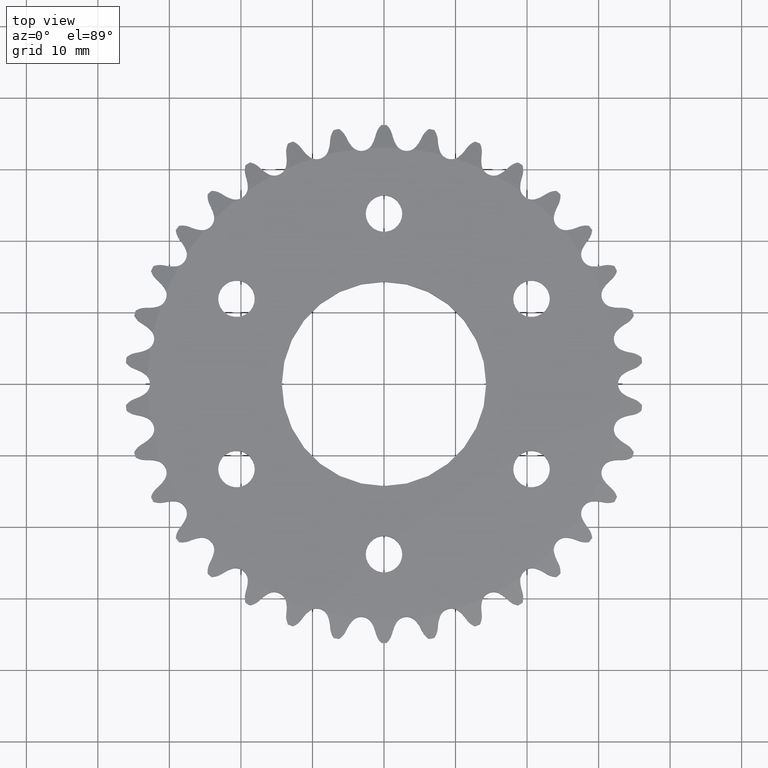
[diagram: clean part render]
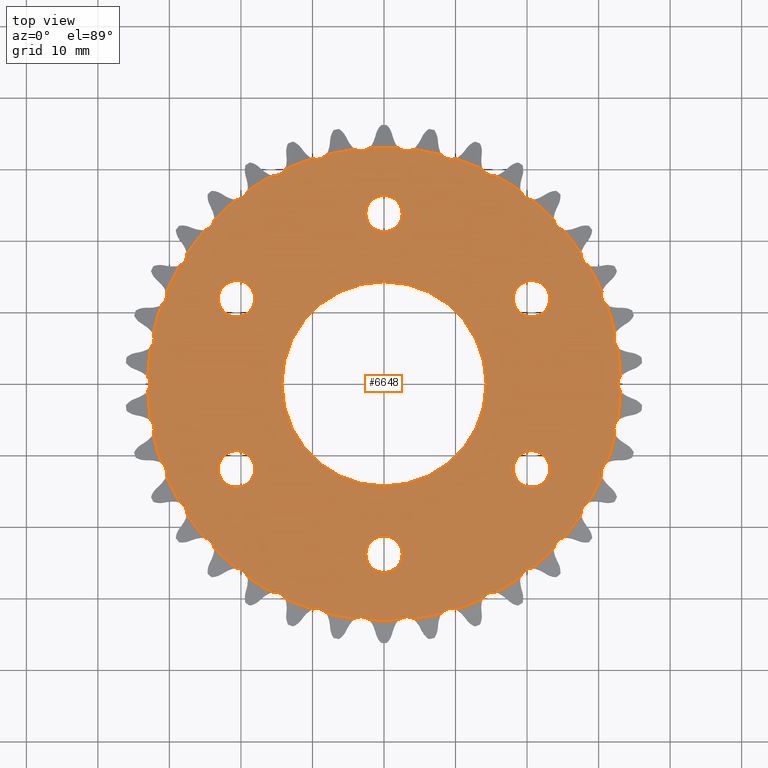
[diagram: same view with one face highlighted and labeled with its STEP entity id]
A machine part, top view. The second image highlights one B-rep face of the part: STEP entity #6648.
In plain terms, the highlighted planar face has unit normal (0, 0, 1).
Its self-contained STEP definition (entity closure, byte-faithful):
#37 = CARTESIAN_POINT ( 'NONE',  ( -1.264851841066655380, -0.2489335440737601712, 0.05500000000000000028 ) ) ;
#59 = DIRECTION ( 'NONE',  ( 0.0000000000000000000, 0.0000000000000000000, 1.000000000000000000 ) ) ;
#84 = DIRECTION ( 'NONE',  ( -0.09226835946330649851, -0.9957341762950341346, 0.0000000000000000000 ) ) ;
#94 = CIRCLE ( 'NONE', #11186, 1.300168551847652010 ) ;
#110 = EDGE_CURVE ( 'NONE', #13197, #1650, #9393, .T. ) ;
#112 = AXIS2_PLACEMENT_3D ( 'NONE', #3572, #8536, #436 ) ;
#119 = FACE_BOUND ( 'NONE', #4384, .T. ) ;
#120 = DIRECTION ( 'NONE',  ( 0.0000000000000000000, 0.0000000000000000000, 1.000000000000000000 ) ) ;
#154 = CARTESIAN_POINT ( 'NONE',  ( -0.5454761576047525429, 1.180209313934768023, 0.05500000000000000028 ) ) ;
#193 = EDGE_CURVE ( 'NONE', #1133, #11093, #916, .T. ) ;
#202 = ORIENTED_EDGE ( 'NONE', *, *, #9658, .F. ) ;
#306 = ORIENTED_EDGE ( 'NONE', *, *, #10190, .F. ) ;
#339 = EDGE_CURVE ( 'NONE', #1248, #7005, #11339, .T. ) ;
#342 = ORIENTED_EDGE ( 'NONE', *, *, #12183, .F. ) ;
#349 = AXIS2_PLACEMENT_3D ( 'NONE', #1366, #1269, #12727 ) ;
#352 = EDGE_LOOP ( 'NONE', ( #4716, #4076 ) ) ;
#376 = EDGE_CURVE ( 'NONE', #8774, #1274, #11970, .T. ) ;
#404 = CARTESIAN_POINT ( 'NONE',  ( -0.7530512818025477673, 1.059883026653960503, 0.05500000000000000028 ) ) ;
#422 = DIRECTION ( 'NONE',  ( -0.0000000000000000000, -0.0000000000000000000, -1.000000000000000000 ) ) ;
#436 = DIRECTION ( 'NONE',  ( 1.000000000000000000, 0.0000000000000000000, 0.0000000000000000000 ) ) ;
#456 = CARTESIAN_POINT ( 'NONE',  ( 1.225504939255089853, -0.4342532752611073521, 0.05500000000000000028 ) ) ;
#467 = EDGE_CURVE ( 'NONE', #5560, #12398, #11502, .T. ) ;
#471 = CARTESIAN_POINT ( 'NONE',  ( 1.263261093548635916, 0.4893899548669656263, 0.05500000000000000028 ) ) ;
#472 = ORIENTED_EDGE ( 'NONE', *, *, #2643, .F. ) ;
#480 = VERTEX_POINT ( 'NONE', #5444 ) ;
#489 = ORIENTED_EDGE ( 'NONE', *, *, #4247, .F. ) ;
#501 = EDGE_CURVE ( 'NONE', #1687, #6997, #9381, .T. ) ;
#535 = DIRECTION ( 'NONE',  ( 0.0000000000000000000, 0.0000000000000000000, 1.000000000000000000 ) ) ;
#545 = CIRCLE ( 'NONE', #4452, 1.300168551847652010 ) ;
#549 = DIRECTION ( 'NONE',  ( -0.8502171357296101073, 0.5264321628773620532, 0.0000000000000000000 ) ) ;
#555 = CIRCLE ( 'NONE', #10130, 0.06682499999999955143 ) ;
#557 = DIRECTION ( 'NONE',  ( -0.4457383557765421944, -0.8951632913550604531, 0.0000000000000000000 ) ) ;
#565 = CARTESIAN_POINT ( 'NONE',  ( -1.331676841066651740, 0.2489335440737771299, 0.05500000000000000028 ) ) ;
#592 = ORIENTED_EDGE ( 'NONE', *, *, #8548, .F. ) ;
#609 = AXIS2_PLACEMENT_3D ( 'NONE', #737, #7983, #4995 ) ;
#621 = DIRECTION ( 'NONE',  ( -0.0000000000000000000, -0.0000000000000000000, -1.000000000000000000 ) ) ;
#626 = DIRECTION ( 'NONE',  ( 1.000000000000000000, 0.0000000000000000000, 0.0000000000000000000 ) ) ;
#643 = AXIS2_PLACEMENT_3D ( 'NONE', #3059, #9200, #6242 ) ;
#651 = DIRECTION ( 'NONE',  ( 0.0000000000000000000, 0.0000000000000000000, 1.000000000000000000 ) ) ;
#663 = EDGE_CURVE ( 'NONE', #2104, #5554, #12774, .T. ) ;
#666 = AXIS2_PLACEMENT_3D ( 'NONE', #4635, #4775, #2550 ) ;
#673 = DIRECTION ( 'NONE',  ( -0.0000000000000000000, -0.0000000000000000000, 1.000000000000000000 ) ) ;
#691 = DIRECTION ( 'NONE',  ( 0.0000000000000000000, 0.0000000000000000000, 1.000000000000000000 ) ) ;
#705 = CARTESIAN_POINT ( 'NONE',  ( 0.9349821477840363215, 0.9034636940900121482, 0.05500000000000000028 ) ) ;
#709 = DIRECTION ( 'NONE',  ( -0.0000000000000000000, -0.0000000000000000000, -1.000000000000000000 ) ) ;
#734 = CIRCLE ( 'NONE', #1649, 1.300168551847652010 ) ;
#737 = CARTESIAN_POINT ( 'NONE',  ( 0.0000000000000000000, -1.702259050814821195E-17, 0.05500000000000000028 ) ) ;
#747 = DIRECTION ( 'NONE',  ( -1.000000000000000000, 0.0000000000000000000, 0.0000000000000000000 ) ) ;
#754 = CIRCLE ( 'NONE', #643, 0.06682499999999953755 ) ;
#802 = DIRECTION ( 'NONE',  ( -0.0000000000000000000, -0.0000000000000000000, -1.000000000000000000 ) ) ;
#813 = CARTESIAN_POINT ( 'NONE',  ( -1.198213617990120161, 0.5047002960932823745, 0.05500000000000000028 ) ) ;
#820 = AXIS2_PLACEMENT_3D ( 'NONE', #5200, #12491, #6248 ) ;
#835 = EDGE_CURVE ( 'NONE', #12733, #2662, #7879, .T. ) ;
#841 = CARTESIAN_POINT ( 'NONE',  ( 0.0000000000000000000, -1.702259050814821195E-17, 0.05500000000000000028 ) ) ;
#848 = CARTESIAN_POINT ( 'NONE',  ( -0.3919901287877642360, -1.239670118276056776, 0.05500000000000000028 ) ) ;
#875 = DIRECTION ( 'NONE',  ( 0.0000000000000000000, 0.0000000000000000000, 1.000000000000000000 ) ) ;
#916 = CIRCLE ( 'NONE', #4787, 0.06682499999999959306 ) ;
#921 = ORIENTED_EDGE ( 'NONE', *, *, #467, .F. ) ;
#930 = EDGE_CURVE ( 'NONE', #8359, #1011, #11325, .T. ) ;
#937 = DIRECTION ( 'NONE',  ( 0.9829730996839016743, -0.1837495178165709786, 0.0000000000000000000 ) ) ;
#960 = AXIS2_PLACEMENT_3D ( 'NONE', #5845, #621, #9952 ) ;
#988 = EDGE_CURVE ( 'NONE', #10133, #5050, #13259, .T. ) ;
#1011 = VERTEX_POINT ( 'NONE', #6379 ) ;
#1016 = VERTEX_POINT ( 'NONE', #4249 ) ;
#1051 = AXIS2_PLACEMENT_3D ( 'NONE', #5878, #13187, #9104 ) ;
#1058 = EDGE_CURVE ( 'NONE', #3546, #3196, #7712, .T. ) ;
#1071 = DIRECTION ( 'NONE',  ( 0.0000000000000000000, 0.0000000000000000000, 1.000000000000000000 ) ) ;
#1093 = VERTEX_POINT ( 'NONE', #10865 ) ;
#1105 = CARTESIAN_POINT ( 'NONE',  ( 1.225504939255101400, 0.4342532752610738789, 0.05500000000000000028 ) ) ;
#1127 = VERTEX_POINT ( 'NONE', #12905 ) ;
#1133 = VERTEX_POINT ( 'NONE', #6658 ) ;
#1139 = CARTESIAN_POINT ( 'NONE',  ( -0.8118988160479155836, -0.4687499999999925060, 0.05500000000000005579 ) ) ;
#1147 = DIRECTION ( 'NONE',  ( -1.000000000000000000, 0.0000000000000000000, 0.0000000000000000000 ) ) ;
#1169 = CARTESIAN_POINT ( 'NONE',  ( -1.331676841066654848, -0.2489335440737601712, 0.05500000000000000028 ) ) ;
#1176 = EDGE_CURVE ( 'NONE', #6486, #8096, #5452, .T. ) ;
#1180 = VERTEX_POINT ( 'NONE', #13162 ) ;
#1208 = CIRCLE ( 'NONE', #7935, 1.300168551847652010 ) ;
#1238 = CIRCLE ( 'NONE', #4766, 0.1004999999999995203 ) ;
#1248 = VERTEX_POINT ( 'NONE', #813 ) ;
#1269 = DIRECTION ( 'NONE',  ( 0.0000000000000000000, 0.0000000000000000000, 1.000000000000000000 ) ) ;
#1274 = VERTEX_POINT ( 'NONE', #12420 ) ;
#1301 = EDGE_CURVE ( 'NONE', #4907, #7127, #8198, .T. ) ;
#1302 = CARTESIAN_POINT ( 'NONE',  ( -0.1575269654551636755, -1.290590375900931619, 0.05500000000000000028 ) ) ;
#1306 = AXIS2_PLACEMENT_3D ( 'NONE', #5640, #9802, #8658 ) ;
#1314 = CARTESIAN_POINT ( 'NONE',  ( -0.8133404083436825971, 1.014354791662637201, 0.05500000000000000028 ) ) ;
#1326 = DIRECTION ( 'NONE',  ( -1.000000000000000000, 0.0000000000000000000, 0.0000000000000000000 ) ) ;
#1330 = VERTEX_POINT ( 'NONE', #4029 ) ;
#1346 = AXIS2_PLACEMENT_3D ( 'NONE', #10129, #709, #8088 ) ;
#1362 = ORIENTED_EDGE ( 'NONE', *, *, #988, .F. ) ;
#1366 = CARTESIAN_POINT ( 'NONE',  ( -0.6038613322720765009, 1.212717036156818695, 0.05500000000000000028 ) ) ;
#1387 = DIRECTION ( 'NONE',  ( -0.0000000000000000000, -0.0000000000000000000, -1.000000000000000000 ) ) ;
#1396 = AXIS2_PLACEMENT_3D ( 'NONE', #6649, #535, #11982 ) ;
#1411 = EDGE_CURVE ( 'NONE', #10913, #8360, #8373, .T. ) ;
#1415 = AXIS2_PLACEMENT_3D ( 'NONE', #4718, #5775, #12916 ) ;
#1416 = CIRCLE ( 'NONE', #666, 1.300168551847652010 ) ;
#1478 = AXIS2_PLACEMENT_3D ( 'NONE', #5980, #8240, #5120 ) ;
#1488 = DIRECTION ( 'NONE',  ( -0.09226835946329013660, 0.9957341762950355779, 0.0000000000000000000 ) ) ;
#1489 = EDGE_CURVE ( 'NONE', #3704, #9653, #4624, .T. ) ;
#1534 = CIRCLE ( 'NONE', #2811, 0.1004999999999995203 ) ;
#1536 = CARTESIAN_POINT ( 'NONE',  ( -1.124844558878016487, 0.6520452297012380161, 0.05500000000000000028 ) ) ;
#1545 = CIRCLE ( 'NONE', #9326, 0.06682499999999950979 ) ;
#1548 = CARTESIAN_POINT ( 'NONE',  ( 0.6038613322721005927, 1.212717036156807149, 0.05500000000000000028 ) ) ;
#1563 = AXIS2_PLACEMENT_3D ( 'NONE', #7141, #2945, #10234 ) ;
#1564 = AXIS2_PLACEMENT_3D ( 'NONE', #6768, #10968, #557 ) ;
#1583 = CIRCLE ( 'NONE', #2316, 0.06682499999999950979 ) ;
#1585 = EDGE_CURVE ( 'NONE', #2662, #5249, #6421, .T. ) ;
#1626 = ORIENTED_EDGE ( 'NONE', *, *, #13116, .F. ) ;
#1636 = DIRECTION ( 'NONE',  ( 0.0000000000000000000, 0.0000000000000000000, 1.000000000000000000 ) ) ;
#1643 = CARTESIAN_POINT ( 'NONE',  ( -0.1004999999999995203, -0.9375000000000000000, 0.05500000000000005579 ) ) ;
#1649 = AXIS2_PLACEMENT_3D ( 'NONE', #8050, #3742, #12063 ) ;
#1650 = VERTEX_POINT ( 'NONE', #8939 ) ;
#1666 = EDGE_CURVE ( 'NONE', #4883, #4297, #6100, .T. ) ;
#1687 = VERTEX_POINT ( 'NONE', #11217 ) ;
#1702 = VERTEX_POINT ( 'NONE', #848 ) ;
#1712 = CIRCLE ( 'NONE', #2079, 0.06682499999999955143 ) ;
#1757 = VERTEX_POINT ( 'NONE', #4064 ) ;
#1811 = CARTESIAN_POINT ( 'NONE',  ( -0.3193254970862691167, 1.260344988534578770, 0.05500000000000000028 ) ) ;
#1830 = AXIS2_PLACEMENT_3D ( 'NONE', #4620, #4521, #4661 ) ;
#1833 = ORIENTED_EDGE ( 'NONE', *, *, #2102, .F. ) ;
#1839 = CIRCLE ( 'NONE', #10565, 1.300168551847652010 ) ;
#1893 = ORIENTED_EDGE ( 'NONE', *, *, #1585, .F. ) ;
#1897 = DIRECTION ( 'NONE',  ( -0.0000000000000000000, -0.0000000000000000000, -1.000000000000000000 ) ) ;
#1903 = EDGE_CURVE ( 'NONE', #6859, #13197, #1208, .T. ) ;
#1923 = AXIS2_PLACEMENT_3D ( 'NONE', #3533, #9902, #2431 ) ;
#1935 = CIRCLE ( 'NONE', #3103, 1.300168551847652010 ) ;
#1967 = CARTESIAN_POINT ( 'NONE',  ( -1.151826504604494650, -0.7131807777057500575, 0.05500000000000000028 ) ) ;
#1988 = DIRECTION ( 'NONE',  ( -0.0000000000000000000, -0.0000000000000000000, -1.000000000000000000 ) ) ;
#1995 = EDGE_CURVE ( 'NONE', #1702, #3546, #5291, .T. ) ;
#2011 = VERTEX_POINT ( 'NONE', #9889 ) ;
#2020 = CARTESIAN_POINT ( 'NONE',  ( -1.354743930932479357, 8.656543329923633765E-15, 0.05500000000000000028 ) ) ;
#2055 = FACE_OUTER_BOUND ( 'NONE', #13023, .T. ) ;
#2079 = AXIS2_PLACEMENT_3D ( 'NONE', #13079, #8899, #11896 ) ;
#2080 = EDGE_CURVE ( 'NONE', #5050, #5758, #94, .T. ) ;
#2086 = ORIENTED_EDGE ( 'NONE', *, *, #7760, .F. ) ;
#2102 = EDGE_CURVE ( 'NONE', #5651, #4079, #4461, .T. ) ;
#2104 = VERTEX_POINT ( 'NONE', #705 ) ;
#2107 = DIRECTION ( 'NONE',  ( 0.0000000000000000000, 0.0000000000000000000, 1.000000000000000000 ) ) ;
#2166 = AXIS2_PLACEMENT_3D ( 'NONE', #8698, #5782, #10121 ) ;
#2191 = DIRECTION ( 'NONE',  ( 0.0000000000000000000, 0.0000000000000000000, 1.000000000000000000 ) ) ;
#2225 = CARTESIAN_POINT ( 'NONE',  ( 1.001167845509656873, -0.9126850845258389633, 0.05500000000000000028 ) ) ;
#2252 = DIRECTION ( 'NONE',  ( -0.0000000000000000000, -0.0000000000000000000, -1.000000000000000000 ) ) ;
#2256 = AXIS2_PLACEMENT_3D ( 'NONE', #9183, #2958, #3990 ) ;
#2275 = CARTESIAN_POINT ( 'NONE',  ( -1.263261093548632363, -0.4893899548669748967, 0.05500000000000000028 ) ) ;
#2282 = CARTESIAN_POINT ( 'NONE',  ( 0.8133404083436752696, -1.014354791662642974, 0.05500000000000000028 ) ) ;
#2284 = AXIS2_PLACEMENT_3D ( 'NONE', #11238, #12290, #5915 ) ;
#2288 = CARTESIAN_POINT ( 'NONE',  ( -0.9858789461506978213, 0.8476325658859562573, 0.05500000000000000028 ) ) ;
#2316 = AXIS2_PLACEMENT_3D ( 'NONE', #4419, #2405, #11692 ) ;
#2332 = CARTESIAN_POINT ( 'NONE',  ( 0.6131045384248142716, -1.146534381593729446, 0.05500000000000000028 ) ) ;
#2355 = EDGE_CURVE ( 'NONE', #9570, #2994, #8180, .T. ) ;
#2372 = CARTESIAN_POINT ( 'NONE',  ( 1.299619699555794039, 0.03777432646822698886, 0.05500000000000000028 ) ) ;
#2377 = FACE_BOUND ( 'NONE', #2570, .T. ) ;
#2401 = CARTESIAN_POINT ( 'NONE',  ( -0.5454761576047680860, -1.180209313934760917, 0.05500000000000000028 ) ) ;
#2405 = DIRECTION ( 'NONE',  ( 0.0000000000000000000, 0.0000000000000000000, 1.000000000000000000 ) ) ;
#2431 = DIRECTION ( 'NONE',  ( -0.6026346363792491889, 0.7980172272802448230, 0.0000000000000000000 ) ) ;
#2453 = ORIENTED_EDGE ( 'NONE', *, *, #11574, .F. ) ;
#2457 = VERTEX_POINT ( 'NONE', #6492 ) ;
#2487 = ORIENTED_EDGE ( 'NONE', *, *, #10859, .F. ) ;
#2507 = DIRECTION ( 'NONE',  ( 1.000000000000000000, 0.0000000000000000000, 0.0000000000000000000 ) ) ;
#2510 = CIRCLE ( 'NONE', #4005, 0.06682499999999952367 ) ;
#2520 = AXIS2_PLACEMENT_3D ( 'NONE', #1967, #8274, #8231 ) ;
#2541 = DIRECTION ( 'NONE',  ( 0.8502171357296131049, -0.5264321628773573902, 0.0000000000000000000 ) ) ;
#2547 = CIRCLE ( 'NONE', #8249, 0.06682499999999953755 ) ;
#2550 = DIRECTION ( 'NONE',  ( -1.000000000000000000, 0.0000000000000000000, 0.0000000000000000000 ) ) ;
#2570 = EDGE_LOOP ( 'NONE', ( #6977, #5356 ) ) ;
#2584 = CIRCLE ( 'NONE', #10353, 0.06682499999999953755 ) ;
#2591 = CARTESIAN_POINT ( 'NONE',  ( 0.9858789461506921592, -0.8476325658859631407, 0.05500000000000000028 ) ) ;
#2620 = ORIENTED_EDGE ( 'NONE', *, *, #1301, .F. ) ;
#2624 = ORIENTED_EDGE ( 'NONE', *, *, #6916, .F. ) ;
#2638 = CARTESIAN_POINT ( 'NONE',  ( 0.1250000000000011102, -1.348964832157749649, 0.05500000000000000028 ) ) ;
#2643 = EDGE_CURVE ( 'NONE', #9002, #6824, #11466, .T. ) ;
#2662 = VERTEX_POINT ( 'NONE', #13040 ) ;
#2671 = CARTESIAN_POINT ( 'NONE',  ( -0.3919901287877485263, 1.239670118276061661, 0.05500000000000000028 ) ) ;
#2702 = CARTESIAN_POINT ( 'NONE',  ( -0.7113988160479063350, 0.4687500000000094924, 0.05500000000000005579 ) ) ;
#2719 = ORIENTED_EDGE ( 'NONE', *, *, #12171, .F. ) ;
#2734 = CIRCLE ( 'NONE', #9916, 1.300168551847652010 ) ;
#2736 = AXIS2_PLACEMENT_3D ( 'NONE', #9361, #5160, #12309 ) ;
#2782 = CARTESIAN_POINT ( 'NONE',  ( -1.287918930932479666, 8.656543329923633765E-15, 0.05500000000000000028 ) ) ;
#2811 = AXIS2_PLACEMENT_3D ( 'NONE', #11004, #13221, #8075 ) ;
#2838 = DIRECTION ( 'NONE',  ( 0.0000000000000000000, 0.0000000000000000000, 1.000000000000000000 ) ) ;
#2878 = CARTESIAN_POINT ( 'NONE',  ( 0.3707432749209683687, -1.303027452703611422, 0.05500000000000000028 ) ) ;
#2884 = DIRECTION ( 'NONE',  ( -1.000000000000000000, 0.0000000000000000000, 0.0000000000000000000 ) ) ;
#2906 = DIRECTION ( 'NONE',  ( -1.000000000000000000, 0.0000000000000000000, 0.0000000000000000000 ) ) ;
#2929 = ORIENTED_EDGE ( 'NONE', *, *, #4238, .F. ) ;
#2945 = DIRECTION ( 'NONE',  ( -0.0000000000000000000, -0.0000000000000000000, -1.000000000000000000 ) ) ;
#2958 = DIRECTION ( 'NONE',  ( 0.0000000000000000000, 0.0000000000000000000, 1.000000000000000000 ) ) ;
#2976 = ORIENTED_EDGE ( 'NONE', *, *, #5353, .F. ) ;
#2983 = CARTESIAN_POINT ( 'NONE',  ( 0.08230058975325850457, 1.297561126167043444, 0.05500000000000000028 ) ) ;
#2994 = VERTEX_POINT ( 'NONE', #4434 ) ;
#3001 = CIRCLE ( 'NONE', #1306, 0.1004999999999995203 ) ;
#3016 = CIRCLE ( 'NONE', #2520, 0.06682499999999950979 ) ;
#3050 = DIRECTION ( 'NONE',  ( -0.8502171357296178789, -0.5264321628773496187, 0.0000000000000000000 ) ) ;
#3059 = CARTESIAN_POINT ( 'NONE',  ( -1.331676841066654848, -0.2489335440737601712, 0.05500000000000000028 ) ) ;
#3087 = VERTEX_POINT ( 'NONE', #3605 ) ;
#3103 = AXIS2_PLACEMENT_3D ( 'NONE', #8793, #7085, #5017 ) ;
#3143 = CARTESIAN_POINT ( 'NONE',  ( -0.8118988160479155836, -0.4687499999999925060, 0.05500000000000005579 ) ) ;
#3145 = ORIENTED_EDGE ( 'NONE', *, *, #5173, .F. ) ;
#3196 = VERTEX_POINT ( 'NONE', #6914 ) ;
#3205 = EDGE_CURVE ( 'NONE', #3196, #1180, #5415, .T. ) ;
#3211 = FACE_BOUND ( 'NONE', #11583, .T. ) ;
#3218 = CARTESIAN_POINT ( 'NONE',  ( 1.198213617990116164, -0.5047002960932919224, 0.05500000000000000028 ) ) ;
#3222 = DIRECTION ( 'NONE',  ( 0.8502171357296203213, 0.5264321628773457329, 0.0000000000000000000 ) ) ;
#3268 = CARTESIAN_POINT ( 'NONE',  ( -1.085073318110198803, -0.7162779890091159896, 0.05500000000000000028 ) ) ;
#3297 = EDGE_CURVE ( 'NONE', #10318, #12355, #754, .T. ) ;
#3299 = CARTESIAN_POINT ( 'NONE',  ( 0.0000000000000000000, -1.702259050814821195E-17, 0.05500000000000000028 ) ) ;
#3320 = VERTEX_POINT ( 'NONE', #11440 ) ;
#3380 = CARTESIAN_POINT ( 'NONE',  ( 0.3193254970862602349, -1.260344988534581212, 0.05500000000000000028 ) ) ;
#3381 = CARTESIAN_POINT ( 'NONE',  ( -1.198213617990126378, -0.5047002960932670534, 0.05500000000000000028 ) ) ;
#3383 = AXIS2_PLACEMENT_3D ( 'NONE', #10185, #3919, #11207 ) ;
#3385 = EDGE_CURVE ( 'NONE', #7005, #5909, #5674, .T. ) ;
#3397 = CARTESIAN_POINT ( 'NONE',  ( 0.0000000000000000000, -1.702259050814821195E-17, 0.05500000000000000028 ) ) ;
#3426 = ORIENTED_EDGE ( 'NONE', *, *, #5752, .F. ) ;
#3448 = CARTESIAN_POINT ( 'NONE',  ( 0.0000000000000000000, -1.702259050814821195E-17, 0.05500000000000000028 ) ) ;
#3463 = DIRECTION ( 'NONE',  ( -1.000000000000000000, 0.0000000000000000000, 0.0000000000000000000 ) ) ;
#3505 = EDGE_CURVE ( 'NONE', #12398, #3087, #4703, .T. ) ;
#3519 = ORIENTED_EDGE ( 'NONE', *, *, #11812, .F. ) ;
#3533 = CARTESIAN_POINT ( 'NONE',  ( 1.001167845509681520, 0.9126850845258120959, 0.05500000000000000028 ) ) ;
#3546 = VERTEX_POINT ( 'NONE', #2401 ) ;
#3549 = DIRECTION ( 'NONE',  ( -1.000000000000000000, 0.0000000000000000000, 0.0000000000000000000 ) ) ;
#3563 = CIRCLE ( 'NONE', #6404, 1.300168551847652010 ) ;
#3572 = CARTESIAN_POINT ( 'NONE',  ( 0.0000000000000000000, 0.9375000000000000000, 0.05500000000000005579 ) ) ;
#3579 = EDGE_CURVE ( 'NONE', #1757, #10932, #12688, .T. ) ;
#3603 = DIRECTION ( 'NONE',  ( -0.2736629900720863873, -0.9618256431728179345, 0.0000000000000000000 ) ) ;
#3605 = CARTESIAN_POINT ( 'NONE',  ( 0.3193254970862939857, 1.260344988534572774, 0.05500000000000000028 ) ) ;
#3621 = ORIENTED_EDGE ( 'NONE', *, *, #4013, .F. ) ;
#3704 = VERTEX_POINT ( 'NONE', #8149 ) ;
#3716 = VERTEX_POINT ( 'NONE', #10407 ) ;
#3735 = EDGE_CURVE ( 'NONE', #5554, #3716, #10592, .T. ) ;
#3742 = DIRECTION ( 'NONE',  ( -0.0000000000000000000, -0.0000000000000000000, -1.000000000000000000 ) ) ;
#3763 = EDGE_CURVE ( 'NONE', #6564, #9570, #4859, .T. ) ;
#3765 = CIRCLE ( 'NONE', #9540, 1.300168551847652010 ) ;
#3767 = EDGE_LOOP ( 'NONE', ( #202, #8172 ) ) ;
#3773 = AXIS2_PLACEMENT_3D ( 'NONE', #6729, #11877, #5637 ) ;
#3798 = AXIS2_PLACEMENT_3D ( 'NONE', #8742, #6624, #1326 ) ;
#3814 = EDGE_LOOP ( 'NONE', ( #7848, #2620 ) ) ;
#3833 = EDGE_CURVE ( 'NONE', #7127, #4907, #7290, .T. ) ;
#3838 = DIRECTION ( 'NONE',  ( -0.0000000000000000000, -0.0000000000000000000, -1.000000000000000000 ) ) ;
#3840 = AXIS2_PLACEMENT_3D ( 'NONE', #5615, #7698, #1488 ) ;
#3876 = CARTESIAN_POINT ( 'NONE',  ( 0.0000000000000000000, -1.702259050814821195E-17, 0.05500000000000000028 ) ) ;
#3881 = CARTESIAN_POINT ( 'NONE',  ( -0.3707432749209774725, 1.303027452703608535, 0.05500000000000000028 ) ) ;
#3912 = DIRECTION ( 'NONE',  ( -0.0000000000000000000, -0.0000000000000000000, -1.000000000000000000 ) ) ;
#3919 = DIRECTION ( 'NONE',  ( -0.0000000000000000000, -0.0000000000000000000, 1.000000000000000000 ) ) ;
#3923 = CARTESIAN_POINT ( 'NONE',  ( 0.9858789461507145857, 0.8476325658859369394, 0.05500000000000000028 ) ) ;
#3933 = VERTEX_POINT ( 'NONE', #7724 ) ;
#3943 = ORIENTED_EDGE ( 'NONE', *, *, #3385, .F. ) ;
#3951 = CIRCLE ( 'NONE', #3840, 0.06682499999999955143 ) ;
#3990 = DIRECTION ( 'NONE',  ( 1.000000000000000000, 0.0000000000000000000, 0.0000000000000000000 ) ) ;
#4005 = AXIS2_PLACEMENT_3D ( 'NONE', #1548, #5665, #549 ) ;
#4006 = AXIS2_PLACEMENT_3D ( 'NONE', #5713, #11778, #2541 ) ;
#4013 = EDGE_CURVE ( 'NONE', #8454, #5874, #1935, .T. ) ;
#4029 = CARTESIAN_POINT ( 'NONE',  ( -1.085001504604495182, -0.7131807777057500575, 0.05500000000000000028 ) ) ;
#4057 = DIRECTION ( 'NONE',  ( -1.000000000000000000, 0.0000000000000000000, 0.0000000000000000000 ) ) ;
#4064 = CARTESIAN_POINT ( 'NONE',  ( 0.08230058975324139325, -1.297561126167044776, 0.05500000000000000028 ) ) ;
#4076 = ORIENTED_EDGE ( 'NONE', *, *, #501, .F. ) ;
#4079 = VERTEX_POINT ( 'NONE', #11125 ) ;
#4087 = CARTESIAN_POINT ( 'NONE',  ( -0.6131045384248229313, 1.146534381593725227, 0.05500000000000000028 ) ) ;
#4129 = ORIENTED_EDGE ( 'NONE', *, *, #3735, .F. ) ;
#4157 = CIRCLE ( 'NONE', #1830, 0.06682499999999953755 ) ;
#4175 = DIRECTION ( 'NONE',  ( 1.000000000000000000, 0.0000000000000000000, 0.0000000000000000000 ) ) ;
#4230 = DIRECTION ( 'NONE',  ( -0.09226835946330649851, -0.9957341762950341346, 0.0000000000000000000 ) ) ;
#4233 = ORIENTED_EDGE ( 'NONE', *, *, #8059, .F. ) ;
#4238 = EDGE_CURVE ( 'NONE', #11304, #12062, #2584, .T. ) ;
#4247 = EDGE_CURVE ( 'NONE', #10595, #2104, #3563, .T. ) ;
#4249 = CARTESIAN_POINT ( 'NONE',  ( 0.3919901287877725071, 1.239670118276053890, 0.05500000000000000028 ) ) ;
#4291 = CIRCLE ( 'NONE', #4697, 0.1004999999999995203 ) ;
#4292 = DIRECTION ( 'NONE',  ( 0.0000000000000000000, 0.0000000000000000000, 1.000000000000000000 ) ) ;
#4297 = VERTEX_POINT ( 'NONE', #7442 ) ;
#4339 = DIRECTION ( 'NONE',  ( 0.4457383557765504101, 0.8951632913550563453, 0.0000000000000000000 ) ) ;
#4382 = DIRECTION ( 'NONE',  ( -1.000000000000000000, 0.0000000000000000000, 0.0000000000000000000 ) ) ;
#4384 = EDGE_LOOP ( 'NONE', ( #7480, #7078 ) ) ;
#4399 = ORIENTED_EDGE ( 'NONE', *, *, #4407, .F. ) ;
#4407 = EDGE_CURVE ( 'NONE', #11093, #4806, #6971, .T. ) ;
#4414 = CARTESIAN_POINT ( 'NONE',  ( 0.0000000000000000000, -1.702259050814821195E-17, 0.05500000000000000028 ) ) ;
#4419 = CARTESIAN_POINT ( 'NONE',  ( -1.151826504604494650, -0.7131807777057500575, 0.05500000000000000028 ) ) ;
#4434 = CARTESIAN_POINT ( 'NONE',  ( 0.9349821477840120076, -0.9034636940900374613, 0.05500000000000000028 ) ) ;
#4452 = AXIS2_PLACEMENT_3D ( 'NONE', #6427, #1387, #5428 ) ;
#4461 = CIRCLE ( 'NONE', #9086, 1.300168551847652010 ) ;
#4463 = CIRCLE ( 'NONE', #1396, 0.5625000000000001110 ) ;
#4467 = AXIS2_PLACEMENT_3D ( 'NONE', #11991, #5768, #12038 ) ;
#4480 = DIRECTION ( 'NONE',  ( -1.000000000000000000, 0.0000000000000000000, 0.0000000000000000000 ) ) ;
#4521 = DIRECTION ( 'NONE',  ( 0.0000000000000000000, 0.0000000000000000000, 1.000000000000000000 ) ) ;
#4569 = ORIENTED_EDGE ( 'NONE', *, *, #11165, .F. ) ;
#4581 = ORIENTED_EDGE ( 'NONE', *, *, #7407, .F. ) ;
#4583 = CARTESIAN_POINT ( 'NONE',  ( 1.085073318110184371, -0.7162779890091380830, 0.05500000000000000028 ) ) ;
#4620 = CARTESIAN_POINT ( 'NONE',  ( -1.263261093548632363, -0.4893899548669748967, 0.05500000000000000028 ) ) ;
#4624 = CIRCLE ( 'NONE', #112, 0.1004999999999995203 ) ;
#4635 = CARTESIAN_POINT ( 'NONE',  ( 0.0000000000000000000, -1.702259050814821195E-17, 0.05500000000000000028 ) ) ;
#4650 = DIRECTION ( 'NONE',  ( 0.9324722294043554793, -0.3612416661871539203, 0.0000000000000000000 ) ) ;
#4661 = DIRECTION ( 'NONE',  ( 0.2736629900720782826, -0.9618256431728202660, 0.0000000000000000000 ) ) ;
#4673 = DIRECTION ( 'NONE',  ( 0.0000000000000000000, 0.0000000000000000000, 1.000000000000000000 ) ) ;
#4697 = AXIS2_PLACEMENT_3D ( 'NONE', #10627, #6508, #5464 ) ;
#4703 = CIRCLE ( 'NONE', #10172, 1.300168551847652010 ) ;
#4708 = DIRECTION ( 'NONE',  ( -0.0000000000000000000, -0.0000000000000000000, -1.000000000000000000 ) ) ;
#4716 = ORIENTED_EDGE ( 'NONE', *, *, #8524, .F. ) ;
#4718 = CARTESIAN_POINT ( 'NONE',  ( 0.0000000000000000000, -1.702259050814821195E-17, 0.05500000000000000028 ) ) ;
#4740 = ORIENTED_EDGE ( 'NONE', *, *, #8672, .F. ) ;
#4766 = AXIS2_PLACEMENT_3D ( 'NONE', #1139, #10524, #11557 ) ;
#4771 = VERTEX_POINT ( 'NONE', #12515 ) ;
#4775 = DIRECTION ( 'NONE',  ( -0.0000000000000000000, -0.0000000000000000000, -1.000000000000000000 ) ) ;
#4787 = AXIS2_PLACEMENT_3D ( 'NONE', #2878, #2838, #10169 ) ;
#4792 = CARTESIAN_POINT ( 'NONE',  ( -1.264851841066652050, 0.2489335440737771299, 0.05500000000000000028 ) ) ;
#4806 = VERTEX_POINT ( 'NONE', #10479 ) ;
#4826 = DIRECTION ( 'NONE',  ( -0.0000000000000000000, -0.0000000000000000000, 1.000000000000000000 ) ) ;
#4853 = ORIENTED_EDGE ( 'NONE', *, *, #11041, .F. ) ;
#4859 = CIRCLE ( 'NONE', #5509, 1.300168551847652010 ) ;
#4864 = CARTESIAN_POINT ( 'NONE',  ( 0.0000000000000000000, -1.702259050814821195E-17, 0.05500000000000000028 ) ) ;
#4880 = ORIENTED_EDGE ( 'NONE', *, *, #7895, .F. ) ;
#4883 = VERTEX_POINT ( 'NONE', #10564 ) ;
#4907 = VERTEX_POINT ( 'NONE', #6447 ) ;
#4916 = ORIENTED_EDGE ( 'NONE', *, *, #11837, .F. ) ;
#4920 = CARTESIAN_POINT ( 'NONE',  ( 0.0000000000000000000, -1.702259050814821195E-17, 0.05500000000000000028 ) ) ;
#4966 = CARTESIAN_POINT ( 'NONE',  ( 0.6038613322720680632, -1.212717036156823136, 0.05500000000000000028 ) ) ;
#4995 = DIRECTION ( 'NONE',  ( -1.000000000000000000, 0.0000000000000000000, 0.0000000000000000000 ) ) ;
#5013 = VERTEX_POINT ( 'NONE', #12897 ) ;
#5017 = DIRECTION ( 'NONE',  ( -1.000000000000000000, 0.0000000000000000000, 0.0000000000000000000 ) ) ;
#5044 = DIRECTION ( 'NONE',  ( 0.9324722294043609194, 0.3612416661871394319, 0.0000000000000000000 ) ) ;
#5050 = VERTEX_POINT ( 'NONE', #5705 ) ;
#5091 = VERTEX_POINT ( 'NONE', #10050 ) ;
#5093 = CARTESIAN_POINT ( 'NONE',  ( -1.284432218757006083, -0.2016733463613239186, 0.05500000000000000028 ) ) ;
#5106 = EDGE_CURVE ( 'NONE', #8586, #10844, #12004, .T. ) ;
#5120 = DIRECTION ( 'NONE',  ( 0.6026346363792550731, -0.7980172272802404931, 0.0000000000000000000 ) ) ;
#5145 = AXIS2_PLACEMENT_3D ( 'NONE', #13288, #1897, #2906 ) ;
#5160 = DIRECTION ( 'NONE',  ( -0.0000000000000000000, -0.0000000000000000000, -1.000000000000000000 ) ) ;
#5173 = EDGE_CURVE ( 'NONE', #5733, #4883, #8914, .T. ) ;
#5200 = CARTESIAN_POINT ( 'NONE',  ( 0.0000000000000000000, -1.702259050814821195E-17, 0.05500000000000000028 ) ) ;
#5215 = AXIS2_PLACEMENT_3D ( 'NONE', #11099, #4673, #11954 ) ;
#5249 = VERTEX_POINT ( 'NONE', #3268 ) ;
#5284 = AXIS2_PLACEMENT_3D ( 'NONE', #8456, #120, #10492 ) ;
#5285 = ORIENTED_EDGE ( 'NONE', *, *, #8935, .F. ) ;
#5291 = CIRCLE ( 'NONE', #3773, 1.300168551847652010 ) ;
#5305 = CARTESIAN_POINT ( 'NONE',  ( -0.08230058975324934523, -1.297561126167044110, 0.05500000000000000028 ) ) ;
#5337 = CARTESIAN_POINT ( 'NONE',  ( -1.001167845509663312, 0.9126850845258319689, 0.05500000000000000028 ) ) ;
#5353 = EDGE_CURVE ( 'NONE', #13354, #6177, #2734, .T. ) ;
#5356 = ORIENTED_EDGE ( 'NONE', *, *, #8033, .F. ) ;
#5359 = DIRECTION ( 'NONE',  ( -0.0000000000000000000, -0.0000000000000000000, -1.000000000000000000 ) ) ;
#5382 = CARTESIAN_POINT ( 'NONE',  ( 0.8118988160479092553, -0.4687500000000038303, 0.05500000000000005579 ) ) ;
#5403 = CARTESIAN_POINT ( 'NONE',  ( 0.5454761576047445493, -1.180209313934771576, 0.05500000000000000028 ) ) ;
#5415 = CIRCLE ( 'NONE', #1346, 1.300168551847652010 ) ;
#5424 = ORIENTED_EDGE ( 'NONE', *, *, #7870, .F. ) ;
#5428 = DIRECTION ( 'NONE',  ( -1.000000000000000000, 0.0000000000000000000, 0.0000000000000000000 ) ) ;
#5444 = CARTESIAN_POINT ( 'NONE',  ( 0.5454761576047761906, 1.180209313934757143, 0.05500000000000000028 ) ) ;
#5448 = DIRECTION ( 'NONE',  ( -1.000000000000000000, 0.0000000000000000000, 0.0000000000000000000 ) ) ;
#5452 = CIRCLE ( 'NONE', #10566, 1.300168551847652010 ) ;
#5458 = DIRECTION ( 'NONE',  ( 0.2736629900720782826, -0.9618256431728202660, 0.0000000000000000000 ) ) ;
#5464 = DIRECTION ( 'NONE',  ( 1.000000000000000000, 0.0000000000000000000, 0.0000000000000000000 ) ) ;
#5465 = ORIENTED_EDGE ( 'NONE', *, *, #10638, .F. ) ;
#5480 = CARTESIAN_POINT ( 'NONE',  ( 0.8118988160479124749, 0.4687499999999981681, 0.05500000000000005579 ) ) ;
#5481 = CARTESIAN_POINT ( 'NONE',  ( 1.331676841066649519, -0.2489335440737869554, 0.05500000000000000028 ) ) ;
#5509 = AXIS2_PLACEMENT_3D ( 'NONE', #10509, #10546, #4382 ) ;
#5526 = VERTEX_POINT ( 'NONE', #4792 ) ;
#5554 = VERTEX_POINT ( 'NONE', #3923 ) ;
#5553 = DIRECTION ( 'NONE',  ( -1.000000000000000000, 0.0000000000000000000, 0.0000000000000000000 ) ) ;
#5560 = VERTEX_POINT ( 'NONE', #2983 ) ;
#5604 = CARTESIAN_POINT ( 'NONE',  ( -0.3707432749209941814, -1.303027452703603872, 0.05500000000000000028 ) ) ;
#5615 = CARTESIAN_POINT ( 'NONE',  ( 1.331676841066656625, 0.2489335440737502625, 0.05500000000000000028 ) ) ;
#5637 = DIRECTION ( 'NONE',  ( -1.000000000000000000, 0.0000000000000000000, 0.0000000000000000000 ) ) ;
#5640 = CARTESIAN_POINT ( 'NONE',  ( 0.8118988160479124749, 0.4687499999999981681, 0.05500000000000005579 ) ) ;
#5651 = VERTEX_POINT ( 'NONE', #3218 ) ;
#5656 = CARTESIAN_POINT ( 'NONE',  ( 0.9123988160479088450, -0.4687500000000038303, 0.05500000000000005579 ) ) ;
#5665 = DIRECTION ( 'NONE',  ( 0.0000000000000000000, 0.0000000000000000000, 1.000000000000000000 ) ) ;
#5674 = CIRCLE ( 'NONE', #5284, 0.06682499999999950979 ) ;
#5705 = CARTESIAN_POINT ( 'NONE',  ( 0.7530512818025404398, -1.059883026653965610, 0.05500000000000000028 ) ) ;
#5711 = ORIENTED_EDGE ( 'NONE', *, *, #2080, .F. ) ;
#5713 = CARTESIAN_POINT ( 'NONE',  ( -0.6038613322720923771, -1.212717036156810924, 0.05500000000000000028 ) ) ;
#5714 = VERTEX_POINT ( 'NONE', #3381 ) ;
#5733 = VERTEX_POINT ( 'NONE', #2372 ) ;
#5746 = CARTESIAN_POINT ( 'NONE',  ( 0.0000000000000000000, -0.9375000000000000000, 0.05500000000000005579 ) ) ;
#5752 = EDGE_CURVE ( 'NONE', #1330, #3933, #1583, .T. ) ;
#5753 = EDGE_LOOP ( 'NONE', ( #12691, #12175 ) ) ;
#5758 = VERTEX_POINT ( 'NONE', #2332 ) ;
#5766 = CARTESIAN_POINT ( 'NONE',  ( 0.0000000000000000000, -1.702259050814821195E-17, 0.05500000000000000028 ) ) ;
#5768 = DIRECTION ( 'NONE',  ( -0.0000000000000000000, -0.0000000000000000000, -1.000000000000000000 ) ) ;
#5775 = DIRECTION ( 'NONE',  ( -0.0000000000000000000, -0.0000000000000000000, -1.000000000000000000 ) ) ;
#5782 = DIRECTION ( 'NONE',  ( 0.0000000000000000000, 0.0000000000000000000, 1.000000000000000000 ) ) ;
#5812 = DIRECTION ( 'NONE',  ( -1.000000000000000000, 0.0000000000000000000, 0.0000000000000000000 ) ) ;
#5845 = CARTESIAN_POINT ( 'NONE',  ( 0.0000000000000000000, -1.702259050814821195E-17, 0.05500000000000000028 ) ) ;
#5846 = DIRECTION ( 'NONE',  ( -0.9324722294043524817, 0.3612416661871617474, 0.0000000000000000000 ) ) ;
#5863 = ORIENTED_EDGE ( 'NONE', *, *, #9783, .F. ) ;
#5870 = EDGE_CURVE ( 'NONE', #3320, #9690, #1416, .T. ) ;
#5874 = VERTEX_POINT ( 'NONE', #456 ) ;
#5876 = DIRECTION ( 'NONE',  ( -1.000000000000000000, 0.0000000000000000000, 0.0000000000000000000 ) ) ;
#5878 = CARTESIAN_POINT ( 'NONE',  ( 0.0000000000000000000, -1.702259050814821195E-17, 0.05500000000000000028 ) ) ;
#5909 = VERTEX_POINT ( 'NONE', #12151 ) ;
#5915 = DIRECTION ( 'NONE',  ( 0.7390089172206575352, -0.6736956436465589837, 0.0000000000000000000 ) ) ;
#5957 = FACE_BOUND ( 'NONE', #3814, .T. ) ;
#5976 = CARTESIAN_POINT ( 'NONE',  ( -0.9123988160479054033, 0.4687500000000094924, 0.05500000000000005579 ) ) ;
#5980 = CARTESIAN_POINT ( 'NONE',  ( -1.001167845509675303, -0.9126850845258189793, 0.05500000000000000028 ) ) ;
#6004 = CARTESIAN_POINT ( 'NONE',  ( 1.270550190208237673, 0.2759356399152380068, 0.05500000000000000028 ) ) ;
#6050 = CARTESIAN_POINT ( 'NONE',  ( -0.8164156162044897691, 1.081108995437476628, 0.05500000000000000028 ) ) ;
#6085 = CARTESIAN_POINT ( 'NONE',  ( -0.1250000000000089928, -1.348964832157749205, 0.05500000000000000028 ) ) ;
#6100 = CIRCLE ( 'NONE', #5145, 1.300168551847652010 ) ;
#6131 = DIRECTION ( 'NONE',  ( 1.000000000000000000, 0.0000000000000000000, 0.0000000000000000000 ) ) ;
#6162 = ORIENTED_EDGE ( 'NONE', *, *, #10540, .F. ) ;
#6164 = AXIS2_PLACEMENT_3D ( 'NONE', #7392, #8216, #8260 ) ;
#6177 = VERTEX_POINT ( 'NONE', #10982 ) ;
#6198 = ORIENTED_EDGE ( 'NONE', *, *, #6700, .F. ) ;
#6242 = DIRECTION ( 'NONE',  ( 0.09226835946329833837, -0.9957341762950349118, 0.0000000000000000000 ) ) ;
#6248 = DIRECTION ( 'NONE',  ( -1.000000000000000000, 0.0000000000000000000, 0.0000000000000000000 ) ) ;
#6263 = EDGE_CURVE ( 'NONE', #1093, #6673, #10218, .T. ) ;
#6269 = CIRCLE ( 'NONE', #11155, 0.06682499999999953755 ) ;
#6313 = CARTESIAN_POINT ( 'NONE',  ( -0.9349821477840301043, -0.9034636940900184765, 0.05500000000000000028 ) ) ;
#6341 = AXIS2_PLACEMENT_3D ( 'NONE', #5604, #11759, #4650 ) ;
#6379 = CARTESIAN_POINT ( 'NONE',  ( -0.9349821477840182249, 0.9034636940900311330, 0.05500000000000000028 ) ) ;
#6396 = DIRECTION ( 'NONE',  ( -0.0000000000000000000, -0.0000000000000000000, -1.000000000000000000 ) ) ;
#6404 = AXIS2_PLACEMENT_3D ( 'NONE', #3299, #7487, #1147 ) ;
#6421 = CIRCLE ( 'NONE', #960, 1.300168551847652010 ) ;
#6426 = EDGE_CURVE ( 'NONE', #12325, #7152, #2547, .T. ) ;
#6427 = CARTESIAN_POINT ( 'NONE',  ( 0.0000000000000000000, -1.702259050814821195E-17, 0.05500000000000000028 ) ) ;
#6439 = CARTESIAN_POINT ( 'NONE',  ( 0.0000000000000000000, -1.702259050814821195E-17, 0.05500000000000000028 ) ) ;
#6447 = CARTESIAN_POINT ( 'NONE',  ( 0.7113988160479097766, -0.4687500000000038303, 0.05500000000000005579 ) ) ;
#6466 = AXIS2_PLACEMENT_3D ( 'NONE', #1169, #8432, #9509 ) ;
#6471 = DIRECTION ( 'NONE',  ( -0.0000000000000000000, -0.0000000000000000000, -1.000000000000000000 ) ) ;
#6486 = VERTEX_POINT ( 'NONE', #154 ) ;
#6492 = CARTESIAN_POINT ( 'NONE',  ( 1.198213617990130153, 0.5047002960932583937, 0.05500000000000000028 ) ) ;
#6508 = DIRECTION ( 'NONE',  ( -0.0000000000000000000, -0.0000000000000000000, 1.000000000000000000 ) ) ;
#6535 = AXIS2_PLACEMENT_3D ( 'NONE', #11744, #8605, #4339 ) ;
#6552 = ORIENTED_EDGE ( 'NONE', *, *, #6860, .F. ) ;
#6564 = VERTEX_POINT ( 'NONE', #4583 ) ;
#6579 = CIRCLE ( 'NONE', #10471, 1.300168551847652010 ) ;
#6622 = DIRECTION ( 'NONE',  ( -0.0000000000000000000, -0.0000000000000000000, -1.000000000000000000 ) ) ;
#6624 = DIRECTION ( 'NONE',  ( -0.0000000000000000000, -0.0000000000000000000, -1.000000000000000000 ) ) ;
#6634 = CARTESIAN_POINT ( 'NONE',  ( 0.0000000000000000000, -1.702259050814821195E-17, 0.05500000000000000028 ) ) ;
#6648 = ADVANCED_FACE ( 'NONE', ( #3211, #9871, #119, #5957, #12789, #9552, #2377, #2055 ), #9878, .T. ) ;
#6649 = CARTESIAN_POINT ( 'NONE',  ( 0.0000000000000000000, 0.0000000000000000000, 0.05500000000000000028 ) ) ;
#6658 = CARTESIAN_POINT ( 'NONE',  ( 0.3919901287877413099, -1.239670118276065214, 0.05500000000000000028 ) ) ;
#6673 = VERTEX_POINT ( 'NONE', #1643 ) ;
#6680 = ORIENTED_EDGE ( 'NONE', *, *, #12284, .F. ) ;
#6700 = EDGE_CURVE ( 'NONE', #3716, #1127, #7721, .T. ) ;
#6729 = CARTESIAN_POINT ( 'NONE',  ( 0.0000000000000000000, -1.702259050814821195E-17, 0.05500000000000000028 ) ) ;
#6759 = CARTESIAN_POINT ( 'NONE',  ( -0.1250000000000011102, 1.348964832157749649, 0.05500000000000000028 ) ) ;
#6767 = DIRECTION ( 'NONE',  ( 0.0000000000000000000, 0.0000000000000000000, 1.000000000000000000 ) ) ;
#6768 = CARTESIAN_POINT ( 'NONE',  ( -1.263261093548626368, 0.4893899548669911614, 0.05500000000000000028 ) ) ;
#6807 = ORIENTED_EDGE ( 'NONE', *, *, #9502, .F. ) ;
#6820 = EDGE_CURVE ( 'NONE', #4771, #12325, #11965, .T. ) ;
#6822 = DIRECTION ( 'NONE',  ( 0.0000000000000000000, 0.0000000000000000000, 1.000000000000000000 ) ) ;
#6824 = VERTEX_POINT ( 'NONE', #4087 ) ;
#6826 = DIRECTION ( 'NONE',  ( 1.000000000000000000, 0.0000000000000000000, 0.0000000000000000000 ) ) ;
#6837 = ORIENTED_EDGE ( 'NONE', *, *, #193, .F. ) ;
#6841 = CIRCLE ( 'NONE', #6466, 0.06682499999999953755 ) ;
#6842 = EDGE_CURVE ( 'NONE', #8360, #10913, #1238, .T. ) ;
#6848 = AXIS2_PLACEMENT_3D ( 'NONE', #4966, #875, #5044 ) ;
#6859 = VERTEX_POINT ( 'NONE', #7214 ) ;
#6860 = EDGE_CURVE ( 'NONE', #1650, #1248, #7899, .T. ) ;
#6899 = CARTESIAN_POINT ( 'NONE',  ( 1.151826504604499313, 0.7131807777057426190, 0.05500000000000000028 ) ) ;
#6900 = AXIS2_PLACEMENT_3D ( 'NONE', #841, #9252, #4057 ) ;
#6914 = CARTESIAN_POINT ( 'NONE',  ( -0.6131045384248373642, -1.146534381593717011, 0.05500000000000000028 ) ) ;
#6916 = EDGE_CURVE ( 'NONE', #3933, #5714, #8217, .T. ) ;
#6937 = CARTESIAN_POINT ( 'NONE',  ( 0.1004999999999995203, 0.9375000000000000000, 0.05500000000000005579 ) ) ;
#6952 = DIRECTION ( 'NONE',  ( 0.6026346363792667304, 0.7980172272802316114, 0.0000000000000000000 ) ) ;
#6954 = DIRECTION ( 'NONE',  ( -1.000000000000000000, 0.0000000000000000000, 0.0000000000000000000 ) ) ;
#6958 = EDGE_CURVE ( 'NONE', #4297, #8454, #11334, .T. ) ;
#6971 = CIRCLE ( 'NONE', #3798, 1.300168551847652010 ) ;
#6977 = ORIENTED_EDGE ( 'NONE', *, *, #376, .F. ) ;
#6978 = ORIENTED_EDGE ( 'NONE', *, *, #6958, .F. ) ;
#6997 = VERTEX_POINT ( 'NONE', #12844 ) ;
#7005 = VERTEX_POINT ( 'NONE', #1536 ) ;
#7008 = DIRECTION ( 'NONE',  ( -0.9829730996839031176, -0.1837495178165628740, 0.0000000000000000000 ) ) ;
#7022 = ORIENTED_EDGE ( 'NONE', *, *, #5870, .F. ) ;
#7026 = AXIS2_PLACEMENT_3D ( 'NONE', #471, #7686, #9811 ) ;
#7041 = EDGE_CURVE ( 'NONE', #5714, #11304, #4157, .T. ) ;
#7078 = ORIENTED_EDGE ( 'NONE', *, *, #10707, .F. ) ;
#7085 = DIRECTION ( 'NONE',  ( -0.0000000000000000000, -0.0000000000000000000, -1.000000000000000000 ) ) ;
#7099 = AXIS2_PLACEMENT_3D ( 'NONE', #9956, #673, #626 ) ;
#7127 = VERTEX_POINT ( 'NONE', #5656 ) ;
#7141 = CARTESIAN_POINT ( 'NONE',  ( 0.0000000000000000000, -1.702259050814821195E-17, 0.05500000000000000028 ) ) ;
#7152 = VERTEX_POINT ( 'NONE', #7885 ) ;
#7214 = CARTESIAN_POINT ( 'NONE',  ( -1.270550190208232122, 0.2759356399152635975, 0.05500000000000000028 ) ) ;
#7279 = AXIS2_PLACEMENT_3D ( 'NONE', #3448, #5359, #5448 ) ;
#7290 = CIRCLE ( 'NONE', #10676, 0.1004999999999995203 ) ;
#7352 = ORIENTED_EDGE ( 'NONE', *, *, #8636, .F. ) ;
#7365 = CARTESIAN_POINT ( 'NONE',  ( -1.284432218757003863, 0.2016733463613397670, 0.05500000000000000028 ) ) ;
#7372 = CIRCLE ( 'NONE', #1563, 1.300168551847652010 ) ;
#7392 = CARTESIAN_POINT ( 'NONE',  ( -1.263261093548626368, 0.4893899548669911614, 0.05500000000000000028 ) ) ;
#7407 = EDGE_CURVE ( 'NONE', #5013, #8359, #6579, .T. ) ;
#7415 = DIRECTION ( 'NONE',  ( -0.0000000000000000000, -0.0000000000000000000, 1.000000000000000000 ) ) ;
#7442 = CARTESIAN_POINT ( 'NONE',  ( 1.284432218757002087, -0.2016733463613490929, 0.05500000000000000028 ) ) ;
#7450 = EDGE_CURVE ( 'NONE', #10932, #10567, #6269, .T. ) ;
#7463 = VERTEX_POINT ( 'NONE', #9123 ) ;
#7480 = ORIENTED_EDGE ( 'NONE', *, *, #6263, .F. ) ;
#7484 = CIRCLE ( 'NONE', #6848, 0.06682499999999957918 ) ;
#7487 = DIRECTION ( 'NONE',  ( -0.0000000000000000000, -0.0000000000000000000, -1.000000000000000000 ) ) ;
#7543 = CARTESIAN_POINT ( 'NONE',  ( 0.0000000000000000000, -1.702259050814821195E-17, 0.05500000000000000028 ) ) ;
#7549 = AXIS2_PLACEMENT_3D ( 'NONE', #10196, #12080, #5846 ) ;
#7573 = DIRECTION ( 'NONE',  ( -1.000000000000000000, 0.0000000000000000000, 0.0000000000000000000 ) ) ;
#7661 = DIRECTION ( 'NONE',  ( -0.0000000000000000000, -0.0000000000000000000, -1.000000000000000000 ) ) ;
#7686 = DIRECTION ( 'NONE',  ( 0.0000000000000000000, 0.0000000000000000000, 1.000000000000000000 ) ) ;
#7698 = DIRECTION ( 'NONE',  ( 0.0000000000000000000, 0.0000000000000000000, 1.000000000000000000 ) ) ;
#7708 = CARTESIAN_POINT ( 'NONE',  ( 0.0000000000000000000, -1.702259050814821195E-17, 0.05500000000000000028 ) ) ;
#7712 = CIRCLE ( 'NONE', #4006, 0.06682499999999960694 ) ;
#7716 = AXIS2_PLACEMENT_3D ( 'NONE', #11014, #13100, #747 ) ;
#7721 = CIRCLE ( 'NONE', #7982, 0.06682499999999957918 ) ;
#7724 = CARTESIAN_POINT ( 'NONE',  ( -1.124844558878025147, -0.6520452297012232501, 0.05500000000000000028 ) ) ;
#7760 = EDGE_CURVE ( 'NONE', #5909, #5013, #1545, .T. ) ;
#7802 = EDGE_CURVE ( 'NONE', #1011, #8911, #10015, .T. ) ;
#7838 = DIRECTION ( 'NONE',  ( 0.0000000000000000000, 0.0000000000000000000, 1.000000000000000000 ) ) ;
#7848 = ORIENTED_EDGE ( 'NONE', *, *, #3833, .F. ) ;
#7870 = EDGE_CURVE ( 'NONE', #10567, #7463, #734, .T. ) ;
#7879 = CIRCLE ( 'NONE', #1478, 0.06682499999999948204 ) ;
#7885 = CARTESIAN_POINT ( 'NONE',  ( -1.299619699555793151, 0.03777432646825314155, 0.05500000000000000028 ) ) ;
#7895 = EDGE_CURVE ( 'NONE', #5249, #1330, #3016, .T. ) ;
#7899 = CIRCLE ( 'NONE', #6164, 0.06682499999999956530 ) ;
#7935 = AXIS2_PLACEMENT_3D ( 'NONE', #6634, #422, #7573 ) ;
#7952 = ORIENTED_EDGE ( 'NONE', *, *, #663, .F. ) ;
#7954 = CARTESIAN_POINT ( 'NONE',  ( 0.5625000000000001110, 0.0000000000000000000, 0.05500000000000000028 ) ) ;
#7982 = AXIS2_PLACEMENT_3D ( 'NONE', #6899, #691, #9008 ) ;
#7983 = DIRECTION ( 'NONE',  ( -0.0000000000000000000, -0.0000000000000000000, -1.000000000000000000 ) ) ;
#7999 = VERTEX_POINT ( 'NONE', #1105 ) ;
#8000 = ORIENTED_EDGE ( 'NONE', *, *, #7041, .F. ) ;
#8002 = CIRCLE ( 'NONE', #9669, 0.1004999999999995203 ) ;
#8007 = ORIENTED_EDGE ( 'NONE', *, *, #9080, .F. ) ;
#8015 = CARTESIAN_POINT ( 'NONE',  ( 0.0000000000000000000, -1.702259050814821195E-17, 0.05500000000000000028 ) ) ;
#8033 = EDGE_CURVE ( 'NONE', #1274, #8774, #4463, .T. ) ;
#8050 = CARTESIAN_POINT ( 'NONE',  ( 0.0000000000000000000, -1.702259050814821195E-17, 0.05500000000000000028 ) ) ;
#8059 = EDGE_CURVE ( 'NONE', #9690, #10595, #1712, .T. ) ;
#8075 = DIRECTION ( 'NONE',  ( 1.000000000000000000, 0.0000000000000000000, 0.0000000000000000000 ) ) ;
#8084 = AXIS2_PLACEMENT_3D ( 'NONE', #13494, #59, #8358 ) ;
#8087 = CARTESIAN_POINT ( 'NONE',  ( 1.151826504604480217, -0.7131807777057733722, 0.05500000000000000028 ) ) ;
#8088 = DIRECTION ( 'NONE',  ( -1.000000000000000000, 0.0000000000000000000, 0.0000000000000000000 ) ) ;
#8096 = VERTEX_POINT ( 'NONE', #2671 ) ;
#8134 = EDGE_CURVE ( 'NONE', #3087, #1016, #11639, .T. ) ;
#8149 = CARTESIAN_POINT ( 'NONE',  ( -0.1004999999999995203, 0.9375000000000000000, 0.05500000000000005579 ) ) ;
#8161 = DIRECTION ( 'NONE',  ( -0.0000000000000000000, -0.0000000000000000000, 1.000000000000000000 ) ) ;
#8172 = ORIENTED_EDGE ( 'NONE', *, *, #1489, .F. ) ;
#8173 = CIRCLE ( 'NONE', #8630, 1.300168551847652010 ) ;
#8180 = CIRCLE ( 'NONE', #10334, 0.06682499999999952367 ) ;
#8186 = CIRCLE ( 'NONE', #1051, 1.300168551847652010 ) ;
#8198 = CIRCLE ( 'NONE', #11939, 0.1004999999999995203 ) ;
#8216 = DIRECTION ( 'NONE',  ( 0.0000000000000000000, 0.0000000000000000000, 1.000000000000000000 ) ) ;
#8217 = CIRCLE ( 'NONE', #7279, 1.300168551847652010 ) ;
#8221 = EDGE_CURVE ( 'NONE', #1127, #2457, #7372, .T. ) ;
#8231 = DIRECTION ( 'NONE',  ( 0.4457383557765364768, -0.8951632913550632287, 0.0000000000000000000 ) ) ;
#8240 = DIRECTION ( 'NONE',  ( 0.0000000000000000000, 0.0000000000000000000, 1.000000000000000000 ) ) ;
#8249 = AXIS2_PLACEMENT_3D ( 'NONE', #2020, #12531, #84 ) ;
#8260 = DIRECTION ( 'NONE',  ( -0.4457383557765421944, -0.8951632913550604531, 0.0000000000000000000 ) ) ;
#8274 = DIRECTION ( 'NONE',  ( 0.0000000000000000000, 0.0000000000000000000, 1.000000000000000000 ) ) ;
#8289 = ORIENTED_EDGE ( 'NONE', *, *, #10205, .F. ) ;
#8303 = AXIS2_PLACEMENT_3D ( 'NONE', #7708, #6622, #3549 ) ;
#8358 = DIRECTION ( 'NONE',  ( -0.9829730996839000090, 0.1837495178165790832, 0.0000000000000000000 ) ) ;
#8359 = VERTEX_POINT ( 'NONE', #2288 ) ;
#8360 = VERTEX_POINT ( 'NONE', #12634 ) ;
#8373 = CIRCLE ( 'NONE', #8895, 0.1004999999999995203 ) ;
#8422 = CARTESIAN_POINT ( 'NONE',  ( 1.284432218757007638, 0.2016733463613140098, 0.05500000000000000028 ) ) ;
#8423 = VERTEX_POINT ( 'NONE', #8422 ) ;
#8432 = DIRECTION ( 'NONE',  ( 0.0000000000000000000, 0.0000000000000000000, 1.000000000000000000 ) ) ;
#8454 = VERTEX_POINT ( 'NONE', #12792 ) ;
#8456 = CARTESIAN_POINT ( 'NONE',  ( -1.151826504604485102, 0.7131807777057652675, 0.05500000000000000028 ) ) ;
#8524 = EDGE_CURVE ( 'NONE', #6997, #1687, #3001, .T. ) ;
#8536 = DIRECTION ( 'NONE',  ( -0.0000000000000000000, -0.0000000000000000000, 1.000000000000000000 ) ) ;
#8548 = EDGE_CURVE ( 'NONE', #10970, #5526, #555, .T. ) ;
#8582 = DIRECTION ( 'NONE',  ( 0.2736629900720946584, 0.9618256431728156031, 0.0000000000000000000 ) ) ;
#8586 = VERTEX_POINT ( 'NONE', #2702 ) ;
#8605 = DIRECTION ( 'NONE',  ( 0.0000000000000000000, 0.0000000000000000000, 1.000000000000000000 ) ) ;
#8621 = ORIENTED_EDGE ( 'NONE', *, *, #930, .F. ) ;
#8630 = AXIS2_PLACEMENT_3D ( 'NONE', #8015, #802, #10191 ) ;
#8631 = AXIS2_PLACEMENT_3D ( 'NONE', #5337, #2107, #11576 ) ;
#8632 = ORIENTED_EDGE ( 'NONE', *, *, #8134, .F. ) ;
#8636 = EDGE_CURVE ( 'NONE', #2994, #10133, #8186, .T. ) ;
#8638 = CIRCLE ( 'NONE', #2284, 0.06682499999999956530 ) ;
#8658 = DIRECTION ( 'NONE',  ( 1.000000000000000000, 0.0000000000000000000, 0.0000000000000000000 ) ) ;
#8672 = EDGE_CURVE ( 'NONE', #4079, #6564, #12280, .T. ) ;
#8698 = CARTESIAN_POINT ( 'NONE',  ( -1.331676841066651740, 0.2489335440737771299, 0.05500000000000000028 ) ) ;
#8736 = DIRECTION ( 'NONE',  ( -1.000000000000000000, 0.0000000000000000000, 0.0000000000000000000 ) ) ;
#8742 = CARTESIAN_POINT ( 'NONE',  ( 0.0000000000000000000, -1.702259050814821195E-17, 0.05500000000000000028 ) ) ;
#8746 = CARTESIAN_POINT ( 'NONE',  ( -1.270550190208235675, -0.2759356399152468886, 0.05500000000000000028 ) ) ;
#8774 = VERTEX_POINT ( 'NONE', #7954 ) ;
#8793 = CARTESIAN_POINT ( 'NONE',  ( 0.0000000000000000000, -1.702259050814821195E-17, 0.05500000000000000028 ) ) ;
#8826 = CIRCLE ( 'NONE', #7716, 1.300168551847652010 ) ;
#8895 = AXIS2_PLACEMENT_3D ( 'NONE', #3143, #10423, #4175 ) ;
#8899 = DIRECTION ( 'NONE',  ( 0.0000000000000000000, 0.0000000000000000000, 1.000000000000000000 ) ) ;
#8911 = VERTEX_POINT ( 'NONE', #1314 ) ;
#8914 = CIRCLE ( 'NONE', #9108, 0.06682499999999955143 ) ;
#8935 = EDGE_CURVE ( 'NONE', #6824, #6486, #11485, .T. ) ;
#8937 = ORIENTED_EDGE ( 'NONE', *, *, #3297, .F. ) ;
#8939 = CARTESIAN_POINT ( 'NONE',  ( -1.196436093548626900, 0.4893899548669911614, 0.05500000000000000028 ) ) ;
#8945 = VERTEX_POINT ( 'NONE', #5403 ) ;
#9002 = VERTEX_POINT ( 'NONE', #404 ) ;
#9008 = DIRECTION ( 'NONE',  ( -0.4457383557765298709, 0.8951632913550664483, 0.0000000000000000000 ) ) ;
#9063 = ORIENTED_EDGE ( 'NONE', *, *, #13134, .F. ) ;
#9080 = EDGE_CURVE ( 'NONE', #11615, #8423, #3951, .T. ) ;
#9086 = AXIS2_PLACEMENT_3D ( 'NONE', #4920, #3838, #5876 ) ;
#9087 = ORIENTED_EDGE ( 'NONE', *, *, #8221, .F. ) ;
#9104 = DIRECTION ( 'NONE',  ( -1.000000000000000000, 0.0000000000000000000, 0.0000000000000000000 ) ) ;
#9108 = AXIS2_PLACEMENT_3D ( 'NONE', #11177, #7838, #13081 ) ;
#9123 = CARTESIAN_POINT ( 'NONE',  ( -0.3193254970862851039, -1.260344988534574995, 0.05500000000000000028 ) ) ;
#9134 = AXIS2_PLACEMENT_3D ( 'NONE', #5481, #12723, #8582 ) ;
#9136 = CARTESIAN_POINT ( 'NONE',  ( 0.7530512818025691946, 1.059883026653945404, 0.05500000000000000028 ) ) ;
#9157 = AXIS2_PLACEMENT_3D ( 'NONE', #11400, #1071, #3222 ) ;
#9175 = CARTESIAN_POINT ( 'NONE',  ( 0.0000000000000000000, -1.702259050814821195E-17, 0.05500000000000000028 ) ) ;
#9183 = CARTESIAN_POINT ( 'NONE',  ( 0.0000000000000000000, 0.0000000000000000000, 0.05500000000000000028 ) ) ;
#9199 = DIRECTION ( 'NONE',  ( 0.0000000000000000000, 0.0000000000000000000, 1.000000000000000000 ) ) ;
#9200 = DIRECTION ( 'NONE',  ( 0.0000000000000000000, 0.0000000000000000000, 1.000000000000000000 ) ) ;
#9252 = DIRECTION ( 'NONE',  ( -0.0000000000000000000, -0.0000000000000000000, -1.000000000000000000 ) ) ;
#9261 = DIRECTION ( 'NONE',  ( -1.000000000000000000, 0.0000000000000000000, 0.0000000000000000000 ) ) ;
#9326 = AXIS2_PLACEMENT_3D ( 'NONE', #10980, #6822, #12927 ) ;
#9331 = ORIENTED_EDGE ( 'NONE', *, *, #339, .F. ) ;
#9347 = AXIS2_PLACEMENT_3D ( 'NONE', #6050, #12475, #3050 ) ;
#9361 = CARTESIAN_POINT ( 'NONE',  ( 0.0000000000000000000, -1.702259050814821195E-17, 0.05500000000000000028 ) ) ;
#9381 = CIRCLE ( 'NONE', #9514, 0.1004999999999995203 ) ;
#9393 = CIRCLE ( 'NONE', #1564, 0.06682499999999956530 ) ;
#9418 = CARTESIAN_POINT ( 'NONE',  ( -1.354743930932479357, 8.656543329923633765E-15, 0.05500000000000000028 ) ) ;
#9502 = EDGE_CURVE ( 'NONE', #6177, #2011, #10812, .T. ) ;
#9509 = DIRECTION ( 'NONE',  ( 0.09226835946329833837, -0.9957341762950349118, 0.0000000000000000000 ) ) ;
#9514 = AXIS2_PLACEMENT_3D ( 'NONE', #5480, #10560, #12675 ) ;
#9540 = AXIS2_PLACEMENT_3D ( 'NONE', #3397, #2252, #4480 ) ;
#9552 = FACE_BOUND ( 'NONE', #3767, .T. ) ;
#9554 = EDGE_CURVE ( 'NONE', #480, #3320, #2510, .T. ) ;
#9570 = VERTEX_POINT ( 'NONE', #2591 ) ;
#9590 = CARTESIAN_POINT ( 'NONE',  ( 0.8133404083437026921, 1.014354791662620991, 0.05500000000000000028 ) ) ;
#9602 = AXIS2_PLACEMENT_3D ( 'NONE', #6759, #1636, #8736 ) ;
#9636 = DIRECTION ( 'NONE',  ( -1.000000000000000000, 0.0000000000000000000, 0.0000000000000000000 ) ) ;
#9653 = VERTEX_POINT ( 'NONE', #6937 ) ;
#9658 = EDGE_CURVE ( 'NONE', #9653, #3704, #1534, .T. ) ;
#9668 = CARTESIAN_POINT ( 'NONE',  ( -1.196436093548632895, -0.4893899548669748967, 0.05500000000000000028 ) ) ;
#9669 = AXIS2_PLACEMENT_3D ( 'NONE', #5746, #4826, #6826 ) ;
#9683 = CIRCLE ( 'NONE', #9347, 0.06682499999999955143 ) ;
#9690 = VERTEX_POINT ( 'NONE', #9136 ) ;
#9779 = ORIENTED_EDGE ( 'NONE', *, *, #110, .F. ) ;
#9783 = EDGE_CURVE ( 'NONE', #8911, #9002, #9683, .T. ) ;
#9802 = DIRECTION ( 'NONE',  ( -0.0000000000000000000, -0.0000000000000000000, 1.000000000000000000 ) ) ;
#9811 = DIRECTION ( 'NONE',  ( -0.2736629900720740083, 0.9618256431728217093, 0.0000000000000000000 ) ) ;
#9871 = FACE_BOUND ( 'NONE', #5753, .T. ) ;
#9878 = PLANE ( 'NONE',  #5215 ) ;
#9889 = CARTESIAN_POINT ( 'NONE',  ( -0.08230058975324165693, 1.297561126167044332, 0.05500000000000000028 ) ) ;
#9902 = DIRECTION ( 'NONE',  ( 0.0000000000000000000, 0.0000000000000000000, 1.000000000000000000 ) ) ;
#9905 = CIRCLE ( 'NONE', #820, 1.300168551847652010 ) ;
#9916 = AXIS2_PLACEMENT_3D ( 'NONE', #7543, #6471, #5553 ) ;
#9952 = DIRECTION ( 'NONE',  ( -1.000000000000000000, 0.0000000000000000000, 0.0000000000000000000 ) ) ;
#9956 = CARTESIAN_POINT ( 'NONE',  ( -0.8118988160479059246, 0.4687500000000094924, 0.05500000000000005579 ) ) ;
#9988 = EDGE_CURVE ( 'NONE', #11761, #4771, #8173, .T. ) ;
#10015 = CIRCLE ( 'NONE', #10028, 1.300168551847652010 ) ;
#10028 = AXIS2_PLACEMENT_3D ( 'NONE', #3876, #12123, #6954 ) ;
#10050 = CARTESIAN_POINT ( 'NONE',  ( -0.8133404083436956977, -1.014354791662626765, 0.05500000000000000028 ) ) ;
#10090 = ORIENTED_EDGE ( 'NONE', *, *, #3763, .F. ) ;
#10092 = EDGE_CURVE ( 'NONE', #10844, #8586, #4291, .T. ) ;
#10121 = DIRECTION ( 'NONE',  ( -0.2736629900720863873, -0.9618256431728179345, 0.0000000000000000000 ) ) ;
#10124 = CIRCLE ( 'NONE', #1415, 1.300168551847652010 ) ;
#10128 = ORIENTED_EDGE ( 'NONE', *, *, #835, .F. ) ;
#10129 = CARTESIAN_POINT ( 'NONE',  ( 0.0000000000000000000, -1.702259050814821195E-17, 0.05500000000000000028 ) ) ;
#10130 = AXIS2_PLACEMENT_3D ( 'NONE', #565, #651, #3603 ) ;
#10133 = VERTEX_POINT ( 'NONE', #2282 ) ;
#10155 = CIRCLE ( 'NONE', #6341, 0.06682499999999953755 ) ;
#10169 = DIRECTION ( 'NONE',  ( 0.9829730996839040058, 0.1837495178165585441, 0.0000000000000000000 ) ) ;
#10172 = AXIS2_PLACEMENT_3D ( 'NONE', #4414, #7661, #3463 ) ;
#10185 = CARTESIAN_POINT ( 'NONE',  ( 0.0000000000000000000, -0.9375000000000000000, 0.05500000000000005579 ) ) ;
#10190 = EDGE_CURVE ( 'NONE', #2011, #5560, #545, .T. ) ;
#10191 = DIRECTION ( 'NONE',  ( -1.000000000000000000, 0.0000000000000000000, 0.0000000000000000000 ) ) ;
#10196 = CARTESIAN_POINT ( 'NONE',  ( 0.3707432749210031742, 1.303027452703601430, 0.05500000000000000028 ) ) ;
#10205 = EDGE_CURVE ( 'NONE', #5874, #5651, #10953, .T. ) ;
#10218 = CIRCLE ( 'NONE', #3383, 0.1004999999999995203 ) ;
#10234 = DIRECTION ( 'NONE',  ( -1.000000000000000000, 0.0000000000000000000, 0.0000000000000000000 ) ) ;
#10278 = ORIENTED_EDGE ( 'NONE', *, *, #2355, .F. ) ;
#10318 = VERTEX_POINT ( 'NONE', #8746 ) ;
#10334 = AXIS2_PLACEMENT_3D ( 'NONE', #2225, #2191, #12689 ) ;
#10353 = AXIS2_PLACEMENT_3D ( 'NONE', #2275, #4292, #5458 ) ;
#10405 = ORIENTED_EDGE ( 'NONE', *, *, #7802, .F. ) ;
#10407 = CARTESIAN_POINT ( 'NONE',  ( 1.085073318110203466, 0.7162779890091091062, 0.05500000000000000028 ) ) ;
#10417 = ORIENTED_EDGE ( 'NONE', *, *, #1903, .F. ) ;
#10423 = DIRECTION ( 'NONE',  ( -0.0000000000000000000, -0.0000000000000000000, 1.000000000000000000 ) ) ;
#10455 = CARTESIAN_POINT ( 'NONE',  ( 0.1575269654551724463, 1.290590375900930509, 0.05500000000000000028 ) ) ;
#10471 = AXIS2_PLACEMENT_3D ( 'NONE', #9175, #1988, #9261 ) ;
#10476 = DIRECTION ( 'NONE',  ( 0.0000000000000000000, 0.0000000000000000000, 1.000000000000000000 ) ) ;
#10479 = CARTESIAN_POINT ( 'NONE',  ( 0.1575269654551565979, -1.290590375900932729, 0.05500000000000000028 ) ) ;
#10492 = DIRECTION ( 'NONE',  ( -0.6026346363792609573, -0.7980172272802360522, 0.0000000000000000000 ) ) ;
#10509 = CARTESIAN_POINT ( 'NONE',  ( 0.0000000000000000000, -1.702259050814821195E-17, 0.05500000000000000028 ) ) ;
#10524 = DIRECTION ( 'NONE',  ( -0.0000000000000000000, -0.0000000000000000000, 1.000000000000000000 ) ) ;
#10540 = EDGE_CURVE ( 'NONE', #8945, #1133, #1839, .T. ) ;
#10546 = DIRECTION ( 'NONE',  ( -0.0000000000000000000, -0.0000000000000000000, -1.000000000000000000 ) ) ;
#10552 = AXIS2_PLACEMENT_3D ( 'NONE', #9418, #10476, #4230 ) ;
#10560 = DIRECTION ( 'NONE',  ( -0.0000000000000000000, -0.0000000000000000000, 1.000000000000000000 ) ) ;
#10564 = CARTESIAN_POINT ( 'NONE',  ( 1.299619699555792929, -0.03777432646826281437, 0.05500000000000000028 ) ) ;
#10565 = AXIS2_PLACEMENT_3D ( 'NONE', #6439, #6396, #9636 ) ;
#10566 = AXIS2_PLACEMENT_3D ( 'NONE', #5766, #4708, #5812 ) ;
#10567 = VERTEX_POINT ( 'NONE', #1302 ) ;
#10576 = CARTESIAN_POINT ( 'NONE',  ( 0.0000000000000000000, -1.702259050814821195E-17, 0.05500000000000000028 ) ) ;
#10592 = CIRCLE ( 'NONE', #2736, 1.300168551847652010 ) ;
#10595 = VERTEX_POINT ( 'NONE', #9590 ) ;
#10627 = CARTESIAN_POINT ( 'NONE',  ( -0.8118988160479059246, 0.4687500000000094924, 0.05500000000000005579 ) ) ;
#10638 = EDGE_CURVE ( 'NONE', #2457, #7999, #10782, .T. ) ;
#10676 = AXIS2_PLACEMENT_3D ( 'NONE', #5382, #7415, #11504 ) ;
#10680 = EDGE_CURVE ( 'NONE', #7463, #1702, #10155, .T. ) ;
#10706 = CARTESIAN_POINT ( 'NONE',  ( -1.225504939255092962, 0.4342532752610986924, 0.05500000000000000028 ) ) ;
#10707 = EDGE_CURVE ( 'NONE', #6673, #1093, #8002, .T. ) ;
#10741 = CIRCLE ( 'NONE', #6900, 1.300168551847652010 ) ;
#10782 = CIRCLE ( 'NONE', #7026, 0.06682499999999957918 ) ;
#10787 = AXIS2_PLACEMENT_3D ( 'NONE', #3881, #11254, #7008 ) ;
#10789 = ORIENTED_EDGE ( 'NONE', *, *, #11132, .F. ) ;
#10812 = CIRCLE ( 'NONE', #9602, 0.06682499999999955143 ) ;
#10844 = VERTEX_POINT ( 'NONE', #5976 ) ;
#10859 = EDGE_CURVE ( 'NONE', #8096, #13354, #11912, .T. ) ;
#10865 = CARTESIAN_POINT ( 'NONE',  ( 0.1004999999999995203, -0.9375000000000000000, 0.05500000000000005579 ) ) ;
#10913 = VERTEX_POINT ( 'NONE', #13471 ) ;
#10932 = VERTEX_POINT ( 'NONE', #5305 ) ;
#10953 = CIRCLE ( 'NONE', #6535, 0.06682499999999956530 ) ;
#10968 = DIRECTION ( 'NONE',  ( 0.0000000000000000000, 0.0000000000000000000, 1.000000000000000000 ) ) ;
#10970 = VERTEX_POINT ( 'NONE', #7365 ) ;
#10980 = CARTESIAN_POINT ( 'NONE',  ( -1.151826504604485102, 0.7131807777057652675, 0.05500000000000000028 ) ) ;
#10982 = CARTESIAN_POINT ( 'NONE',  ( -0.1575269654551565146, 1.290590375900932507, 0.05500000000000000028 ) ) ;
#11004 = CARTESIAN_POINT ( 'NONE',  ( 0.0000000000000000000, 0.9375000000000000000, 0.05500000000000005579 ) ) ;
#11014 = CARTESIAN_POINT ( 'NONE',  ( 0.0000000000000000000, -1.702259050814821195E-17, 0.05500000000000000028 ) ) ;
#11041 = EDGE_CURVE ( 'NONE', #1016, #480, #11746, .T. ) ;
#11093 = VERTEX_POINT ( 'NONE', #3380 ) ;
#11098 = ORIENTED_EDGE ( 'NONE', *, *, #9988, .F. ) ;
#11099 = CARTESIAN_POINT ( 'NONE',  ( 1.188681141959354577E-31, 1.702259050814821195E-17, 0.05500000000000000028 ) ) ;
#11100 = CIRCLE ( 'NONE', #2166, 0.06682499999999955143 ) ;
#11110 = ORIENTED_EDGE ( 'NONE', *, *, #1995, .F. ) ;
#11125 = CARTESIAN_POINT ( 'NONE',  ( 1.124844558878012046, -0.6520452297012460097, 0.05500000000000000028 ) ) ;
#11132 = EDGE_CURVE ( 'NONE', #5526, #6859, #11100, .T. ) ;
#11155 = AXIS2_PLACEMENT_3D ( 'NONE', #6085, #13343, #937 ) ;
#11165 = EDGE_CURVE ( 'NONE', #5091, #12733, #8826, .T. ) ;
#11177 = CARTESIAN_POINT ( 'NONE',  ( 1.354743930932479357, -1.873023280656060446E-14, 0.05500000000000000028 ) ) ;
#11186 = AXIS2_PLACEMENT_3D ( 'NONE', #4864, #3912, #2884 ) ;
#11207 = DIRECTION ( 'NONE',  ( 1.000000000000000000, 0.0000000000000000000, 0.0000000000000000000 ) ) ;
#11217 = CARTESIAN_POINT ( 'NONE',  ( 0.7113988160479128853, 0.4687499999999981681, 0.05500000000000005579 ) ) ;
#11238 = CARTESIAN_POINT ( 'NONE',  ( -0.8164156162045037579, -1.081108995437465969, 0.05500000000000000028 ) ) ;
#11241 = ORIENTED_EDGE ( 'NONE', *, *, #9554, .F. ) ;
#11254 = DIRECTION ( 'NONE',  ( 0.0000000000000000000, 0.0000000000000000000, 1.000000000000000000 ) ) ;
#11304 = VERTEX_POINT ( 'NONE', #9668 ) ;
#11325 = CIRCLE ( 'NONE', #8631, 0.06682499999999959306 ) ;
#11334 = CIRCLE ( 'NONE', #9134, 0.06682499999999953755 ) ;
#11339 = CIRCLE ( 'NONE', #609, 1.300168551847652010 ) ;
#11400 = CARTESIAN_POINT ( 'NONE',  ( 0.8164156162044824416, -1.081108995437482401, 0.05500000000000000028 ) ) ;
#11440 = CARTESIAN_POINT ( 'NONE',  ( 0.6131045384248445806, 1.146534381593713237, 0.05500000000000000028 ) ) ;
#11466 = CIRCLE ( 'NONE', #4467, 1.300168551847652010 ) ;
#11485 = CIRCLE ( 'NONE', #349, 0.06682499999999952367 ) ;
#11502 = CIRCLE ( 'NONE', #8084, 0.06682499999999956530 ) ;
#11504 = DIRECTION ( 'NONE',  ( 1.000000000000000000, 0.0000000000000000000, 0.0000000000000000000 ) ) ;
#11557 = DIRECTION ( 'NONE',  ( 1.000000000000000000, 0.0000000000000000000, 0.0000000000000000000 ) ) ;
#11574 = EDGE_CURVE ( 'NONE', #5758, #8945, #7484, .T. ) ;
#11576 = DIRECTION ( 'NONE',  ( -0.7390089172206633084, -0.6736956436465525444, 0.0000000000000000000 ) ) ;
#11583 = EDGE_LOOP ( 'NONE', ( #12951, #12039 ) ) ;
#11615 = VERTEX_POINT ( 'NONE', #6004 ) ;
#11639 = CIRCLE ( 'NONE', #7549, 0.06682499999999960694 ) ;
#11691 = DIRECTION ( 'NONE',  ( -0.0000000000000000000, -0.0000000000000000000, -1.000000000000000000 ) ) ;
#11692 = DIRECTION ( 'NONE',  ( 0.4457383557765364768, -0.8951632913550632287, 0.0000000000000000000 ) ) ;
#11744 = CARTESIAN_POINT ( 'NONE',  ( 1.263261093548622371, -0.4893899548670004873, 0.05500000000000000028 ) ) ;
#11746 = CIRCLE ( 'NONE', #12637, 1.300168551847652010 ) ;
#11755 = ORIENTED_EDGE ( 'NONE', *, *, #6820, .F. ) ;
#11759 = DIRECTION ( 'NONE',  ( 0.0000000000000000000, 0.0000000000000000000, 1.000000000000000000 ) ) ;
#11761 = VERTEX_POINT ( 'NONE', #5093 ) ;
#11778 = DIRECTION ( 'NONE',  ( 0.0000000000000000000, 0.0000000000000000000, 1.000000000000000000 ) ) ;
#11784 = DIRECTION ( 'NONE',  ( -1.000000000000000000, 0.0000000000000000000, 0.0000000000000000000 ) ) ;
#11812 = EDGE_CURVE ( 'NONE', #12355, #11761, #6841, .T. ) ;
#11837 = EDGE_CURVE ( 'NONE', #12062, #10318, #3765, .T. ) ;
#11877 = DIRECTION ( 'NONE',  ( -0.0000000000000000000, -0.0000000000000000000, -1.000000000000000000 ) ) ;
#11896 = DIRECTION ( 'NONE',  ( -0.7390089172206536494, 0.6736956436465632025, 0.0000000000000000000 ) ) ;
#11912 = CIRCLE ( 'NONE', #10787, 0.06682499999999950979 ) ;
#11939 = AXIS2_PLACEMENT_3D ( 'NONE', #13298, #8161, #6131 ) ;
#11954 = DIRECTION ( 'NONE',  ( 1.000000000000000000, 0.0000000000000000000, -0.0000000000000000000 ) ) ;
#11965 = CIRCLE ( 'NONE', #10552, 0.06682499999999953755 ) ;
#11970 = CIRCLE ( 'NONE', #2256, 0.5625000000000001110 ) ;
#11982 = DIRECTION ( 'NONE',  ( 1.000000000000000000, 0.0000000000000000000, 0.0000000000000000000 ) ) ;
#11991 = CARTESIAN_POINT ( 'NONE',  ( 0.0000000000000000000, -1.702259050814821195E-17, 0.05500000000000000028 ) ) ;
#12004 = CIRCLE ( 'NONE', #7099, 0.1004999999999995203 ) ;
#12038 = DIRECTION ( 'NONE',  ( -1.000000000000000000, 0.0000000000000000000, 0.0000000000000000000 ) ) ;
#12039 = ORIENTED_EDGE ( 'NONE', *, *, #10092, .F. ) ;
#12062 = VERTEX_POINT ( 'NONE', #12168 ) ;
#12063 = DIRECTION ( 'NONE',  ( -1.000000000000000000, 0.0000000000000000000, 0.0000000000000000000 ) ) ;
#12080 = DIRECTION ( 'NONE',  ( 0.0000000000000000000, 0.0000000000000000000, 1.000000000000000000 ) ) ;
#12123 = DIRECTION ( 'NONE',  ( -0.0000000000000000000, -0.0000000000000000000, -1.000000000000000000 ) ) ;
#12151 = CARTESIAN_POINT ( 'NONE',  ( -1.085001504604485634, 0.7131807777057652675, 0.05500000000000000028 ) ) ;
#12168 = CARTESIAN_POINT ( 'NONE',  ( -1.225504939255098513, -0.4342532752610827051, 0.05500000000000000028 ) ) ;
#12171 = EDGE_CURVE ( 'NONE', #4806, #1757, #13184, .T. ) ;
#12175 = ORIENTED_EDGE ( 'NONE', *, *, #6842, .F. ) ;
#12183 = EDGE_CURVE ( 'NONE', #7999, #11615, #10124, .T. ) ;
#12263 = ORIENTED_EDGE ( 'NONE', *, *, #1666, .F. ) ;
#12280 = CIRCLE ( 'NONE', #13421, 0.06682499999999953755 ) ;
#12284 = EDGE_CURVE ( 'NONE', #1180, #5091, #8638, .T. ) ;
#12290 = DIRECTION ( 'NONE',  ( 0.0000000000000000000, 0.0000000000000000000, 1.000000000000000000 ) ) ;
#12309 = DIRECTION ( 'NONE',  ( -1.000000000000000000, 0.0000000000000000000, 0.0000000000000000000 ) ) ;
#12325 = VERTEX_POINT ( 'NONE', #2782 ) ;
#12347 = ORIENTED_EDGE ( 'NONE', *, *, #1176, .F. ) ;
#12355 = VERTEX_POINT ( 'NONE', #37 ) ;
#12398 = VERTEX_POINT ( 'NONE', #10455 ) ;
#12420 = CARTESIAN_POINT ( 'NONE',  ( -0.5625000000000001110, 6.888638245203861944E-17, 0.05500000000000000028 ) ) ;
#12437 = ORIENTED_EDGE ( 'NONE', *, *, #7450, .F. ) ;
#12475 = DIRECTION ( 'NONE',  ( 0.0000000000000000000, 0.0000000000000000000, 1.000000000000000000 ) ) ;
#12491 = DIRECTION ( 'NONE',  ( -0.0000000000000000000, -0.0000000000000000000, -1.000000000000000000 ) ) ;
#12515 = CARTESIAN_POINT ( 'NONE',  ( -1.299619699555793817, -0.03777432646823666862, 0.05500000000000000028 ) ) ;
#12531 = DIRECTION ( 'NONE',  ( 0.0000000000000000000, 0.0000000000000000000, 1.000000000000000000 ) ) ;
#12600 = ORIENTED_EDGE ( 'NONE', *, *, #1058, .F. ) ;
#12634 = CARTESIAN_POINT ( 'NONE',  ( -0.9123988160479150622, -0.4687499999999925060, 0.05500000000000005579 ) ) ;
#12637 = AXIS2_PLACEMENT_3D ( 'NONE', #10576, #11691, #11784 ) ;
#12675 = DIRECTION ( 'NONE',  ( 1.000000000000000000, 0.0000000000000000000, 0.0000000000000000000 ) ) ;
#12688 = CIRCLE ( 'NONE', #8303, 1.300168551847652010 ) ;
#12689 = DIRECTION ( 'NONE',  ( 0.7390089172206681933, 0.6736956436465471043, 0.0000000000000000000 ) ) ;
#12691 = ORIENTED_EDGE ( 'NONE', *, *, #1411, .F. ) ;
#12723 = DIRECTION ( 'NONE',  ( 0.0000000000000000000, 0.0000000000000000000, 1.000000000000000000 ) ) ;
#12727 = DIRECTION ( 'NONE',  ( -0.9324722294043576998, -0.3612416661871478696, 0.0000000000000000000 ) ) ;
#12733 = VERTEX_POINT ( 'NONE', #6313 ) ;
#12774 = CIRCLE ( 'NONE', #1923, 0.06682499999999945428 ) ;
#12789 = FACE_BOUND ( 'NONE', #352, .T. ) ;
#12792 = CARTESIAN_POINT ( 'NONE',  ( 1.270550190208229679, -0.2759356399152728678, 0.05500000000000000028 ) ) ;
#12844 = CARTESIAN_POINT ( 'NONE',  ( 0.9123988160479119536, 0.4687499999999981681, 0.05500000000000005579 ) ) ;
#12897 = CARTESIAN_POINT ( 'NONE',  ( -1.085073318110189255, 0.7162779890091306445, 0.05500000000000000028 ) ) ;
#12905 = CARTESIAN_POINT ( 'NONE',  ( 1.124844558878029366, 0.6520452297012160336, 0.05500000000000000028 ) ) ;
#12916 = DIRECTION ( 'NONE',  ( -1.000000000000000000, 0.0000000000000000000, 0.0000000000000000000 ) ) ;
#12927 = DIRECTION ( 'NONE',  ( -0.6026346363792609573, -0.7980172272802360522, 0.0000000000000000000 ) ) ;
#12951 = ORIENTED_EDGE ( 'NONE', *, *, #5106, .F. ) ;
#13023 = EDGE_LOOP ( 'NONE', ( #12437, #13355, #2719, #4399, #6837, #6162, #2453, #5711, #1362, #7352, #10278, #10090, #4740, #1833, #8289, #3621, #6978, #12263, #3145, #9063, #8007, #342, #5465, #9087, #6198, #4129, #7952, #489, #4233, #7022, #11241, #4853, #8632, #13202, #921, #306, #6807, #2976, #2487, #12347, #5285, #472, #5863, #10405, #8621, #4581, #2086, #3943, #9331, #6552, #9779, #10417, #10789, #592, #1626, #13217, #11755, #11098, #3519, #8937, #4916, #2929, #8000, #2624, #3426, #4880, #1893, #10128, #4569, #6680, #13466, #12600, #11110, #13359, #5424 ) ) ;
#13040 = CARTESIAN_POINT ( 'NONE',  ( -0.9858789461507089236, -0.8476325658859436007, 0.05500000000000000028 ) ) ;
#13079 = CARTESIAN_POINT ( 'NONE',  ( 0.8164156162045116405, 1.081108995437460196, 0.05500000000000000028 ) ) ;
#13081 = DIRECTION ( 'NONE',  ( 0.09226835946331465865, 0.9957341762950332464, 0.0000000000000000000 ) ) ;
#13100 = DIRECTION ( 'NONE',  ( -0.0000000000000000000, -0.0000000000000000000, -1.000000000000000000 ) ) ;
#13116 = EDGE_CURVE ( 'NONE', #7152, #10970, #10741, .T. ) ;
#13134 = EDGE_CURVE ( 'NONE', #8423, #5733, #9905, .T. ) ;
#13162 = CARTESIAN_POINT ( 'NONE',  ( -0.7530512818025612010, -1.059883026653951177, 0.05500000000000000028 ) ) ;
#13184 = CIRCLE ( 'NONE', #13258, 0.06682499999999955143 ) ;
#13187 = DIRECTION ( 'NONE',  ( -0.0000000000000000000, -0.0000000000000000000, -1.000000000000000000 ) ) ;
#13197 = VERTEX_POINT ( 'NONE', #10706 ) ;
#13202 = ORIENTED_EDGE ( 'NONE', *, *, #3505, .F. ) ;
#13217 = ORIENTED_EDGE ( 'NONE', *, *, #6426, .F. ) ;
#13221 = DIRECTION ( 'NONE',  ( -0.0000000000000000000, -0.0000000000000000000, 1.000000000000000000 ) ) ;
#13258 = AXIS2_PLACEMENT_3D ( 'NONE', #2638, #6767, #2507 ) ;
#13259 = CIRCLE ( 'NONE', #9157, 0.06682499999999952367 ) ;
#13288 = CARTESIAN_POINT ( 'NONE',  ( 0.0000000000000000000, -1.702259050814821195E-17, 0.05500000000000000028 ) ) ;
#13298 = CARTESIAN_POINT ( 'NONE',  ( 0.8118988160479092553, -0.4687500000000038303, 0.05500000000000005579 ) ) ;
#13343 = DIRECTION ( 'NONE',  ( 0.0000000000000000000, 0.0000000000000000000, 1.000000000000000000 ) ) ;
#13354 = VERTEX_POINT ( 'NONE', #1811 ) ;
#13355 = ORIENTED_EDGE ( 'NONE', *, *, #3579, .F. ) ;
#13359 = ORIENTED_EDGE ( 'NONE', *, *, #10680, .F. ) ;
#13421 = AXIS2_PLACEMENT_3D ( 'NONE', #8087, #9199, #6952 ) ;
#13466 = ORIENTED_EDGE ( 'NONE', *, *, #3205, .F. ) ;
#13471 = CARTESIAN_POINT ( 'NONE',  ( -0.7113988160479161049, -0.4687499999999925060, 0.05500000000000005579 ) ) ;
#13494 = CARTESIAN_POINT ( 'NONE',  ( 0.1250000000000183464, 1.348964832157748317, 0.05500000000000000028 ) ) ;